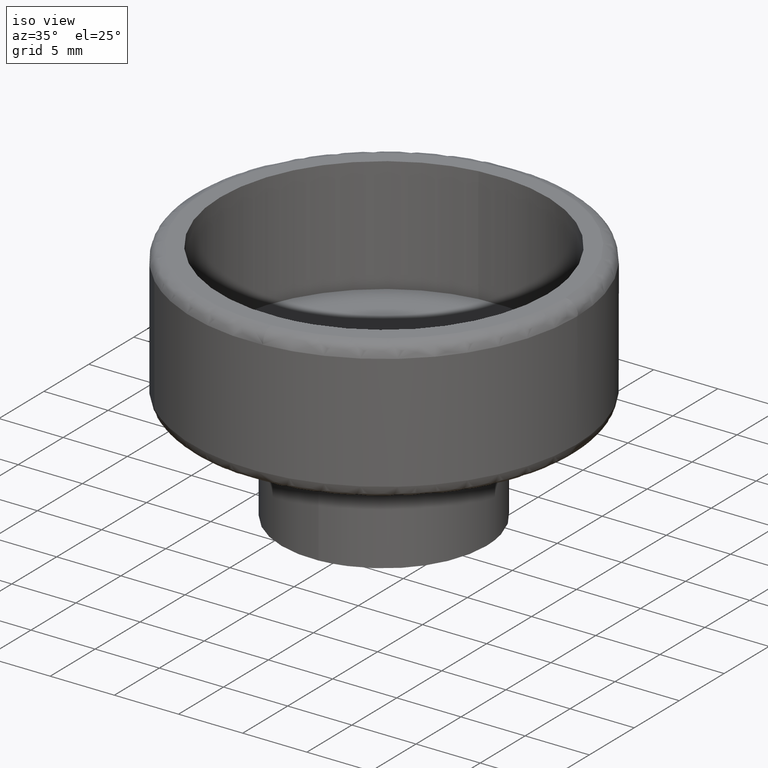
[diagram: clean part render]
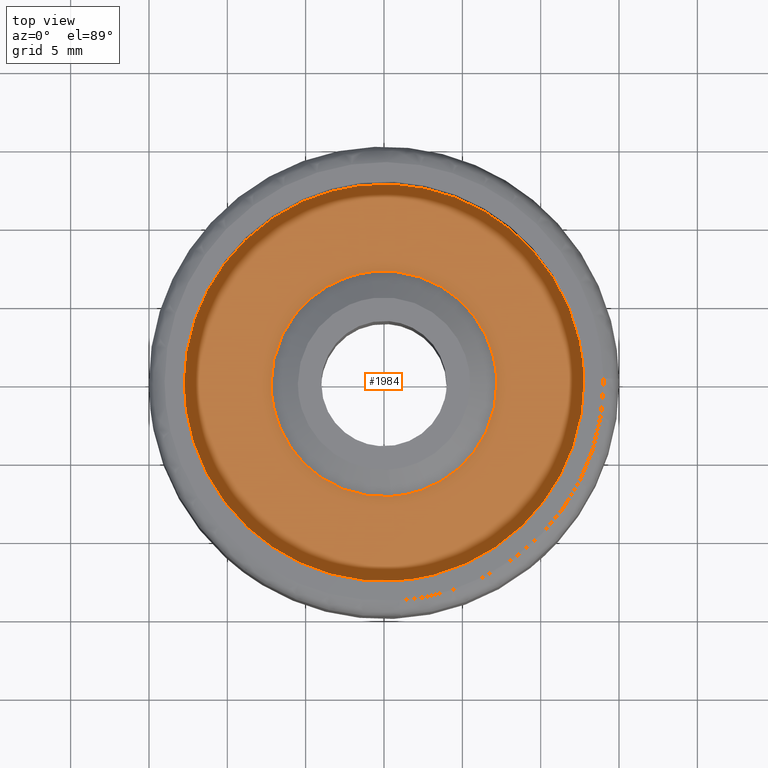
[diagram: tour spotlight — one face highlighted and labeled with its STEP entity id]
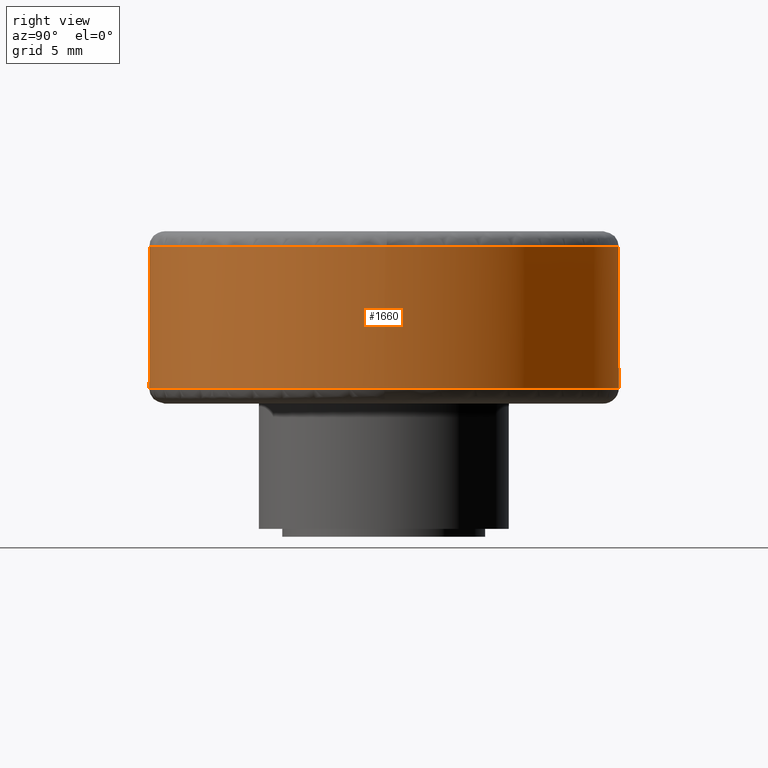
[diagram: tour spotlight — one face highlighted and labeled with its STEP entity id]
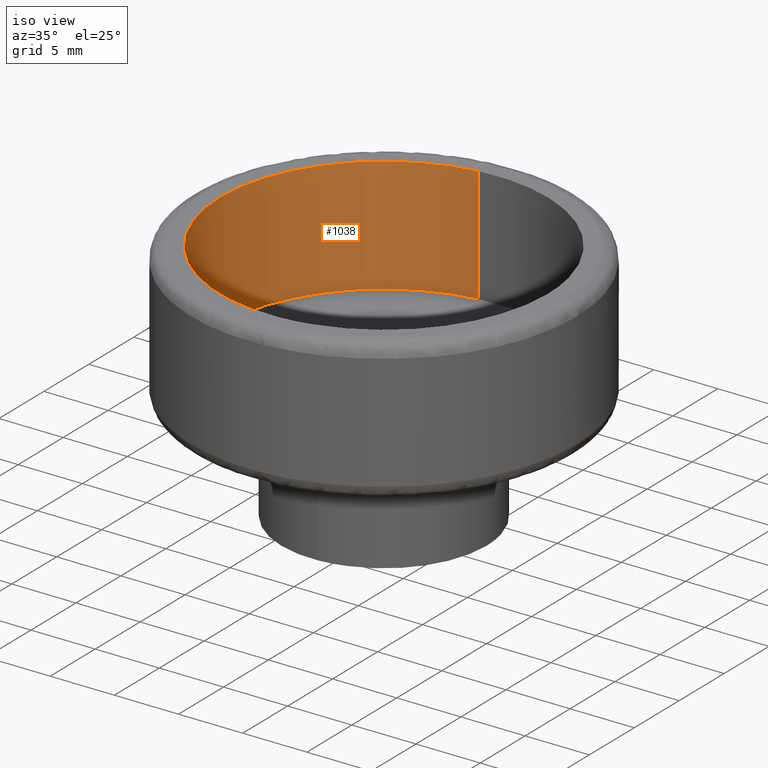
[diagram: tour spotlight — one face highlighted and labeled with its STEP entity id]
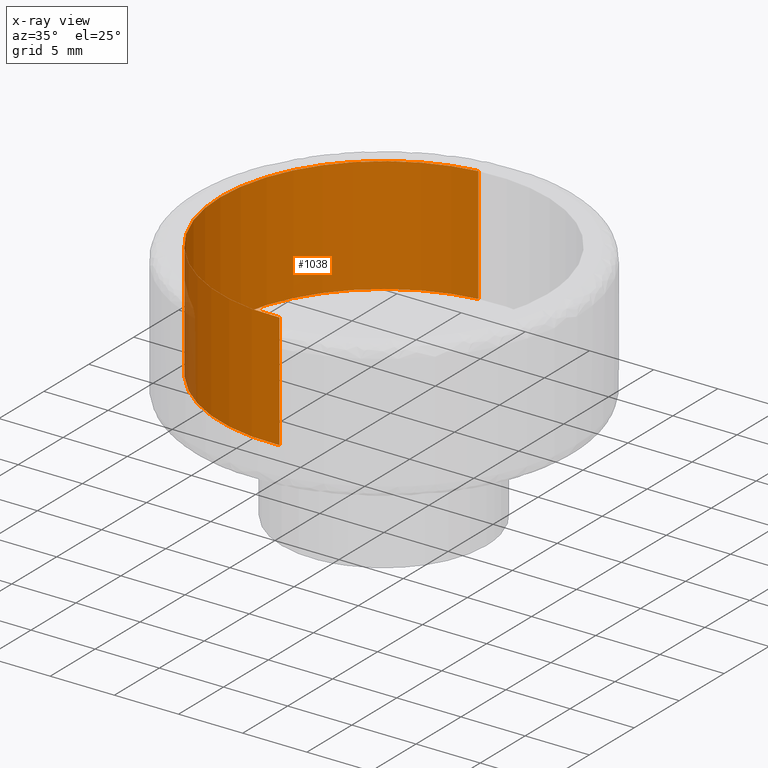
[diagram: x-ray of the same camera — body ghosted, this tour face saturated]
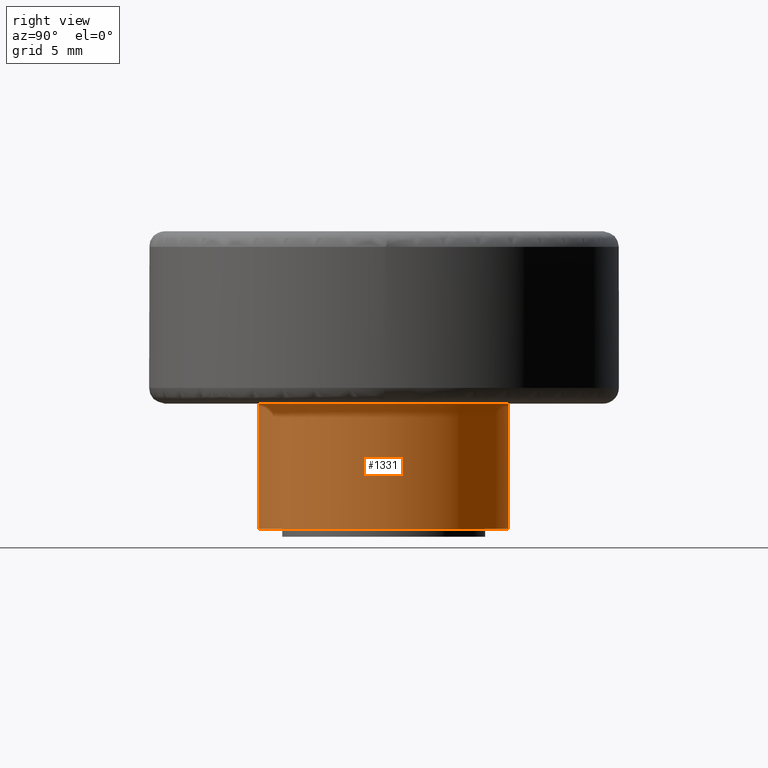
[diagram: tour spotlight — one face highlighted and labeled with its STEP entity id]
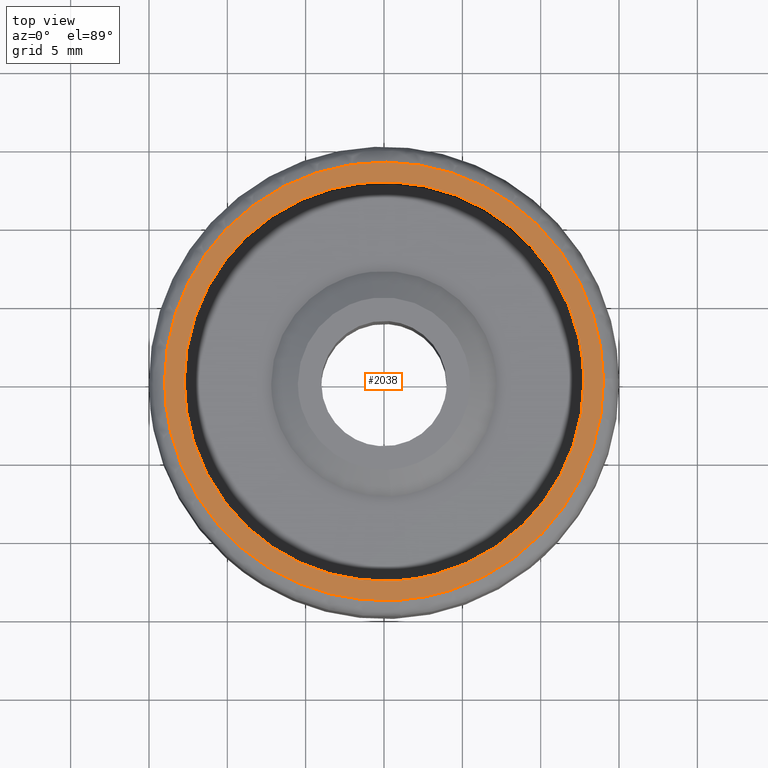
[diagram: tour spotlight — one face highlighted and labeled with its STEP entity id]
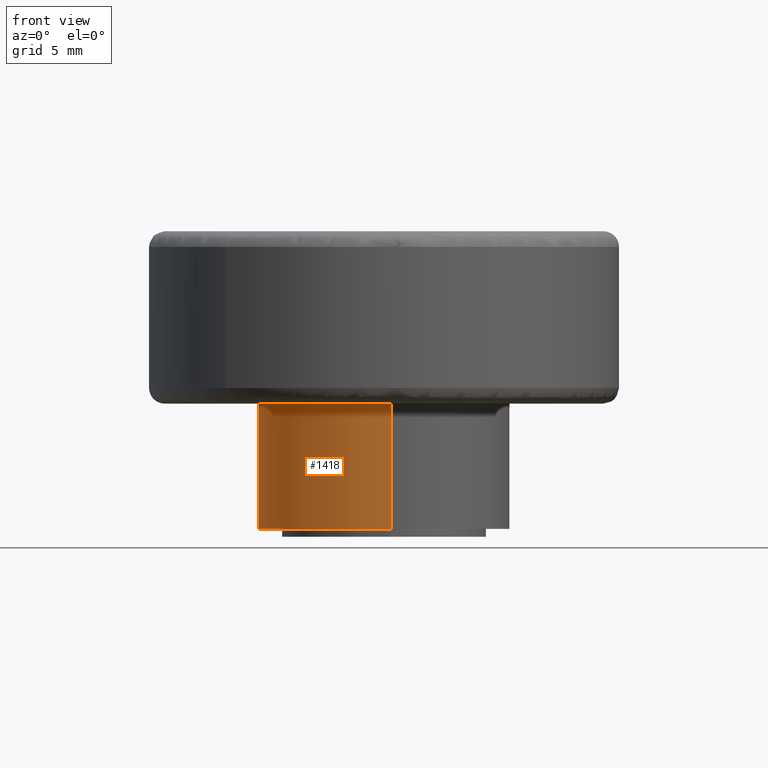
[diagram: tour spotlight — one face highlighted and labeled with its STEP entity id]
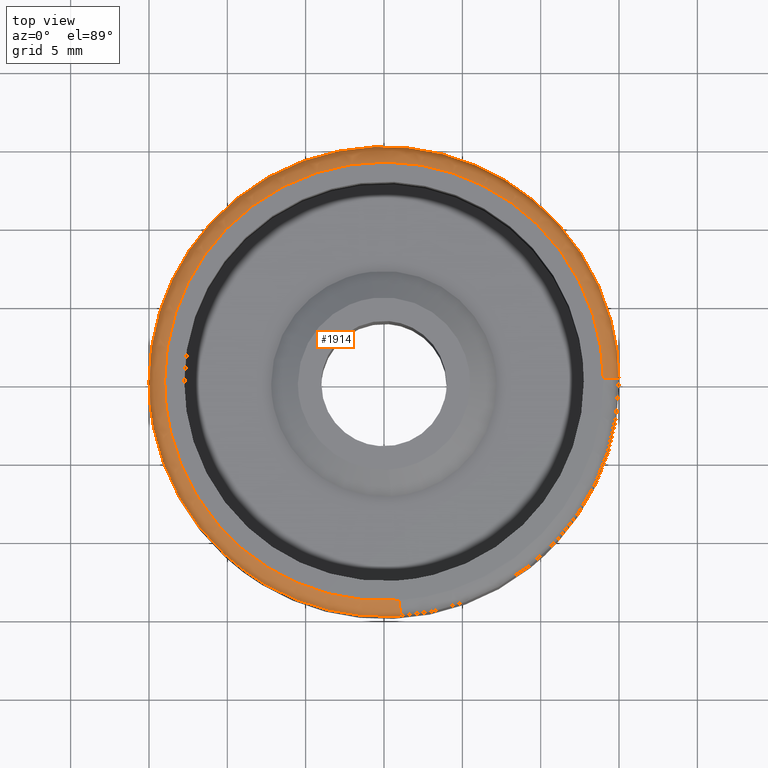
[diagram: tour spotlight — one face highlighted and labeled with its STEP entity id]
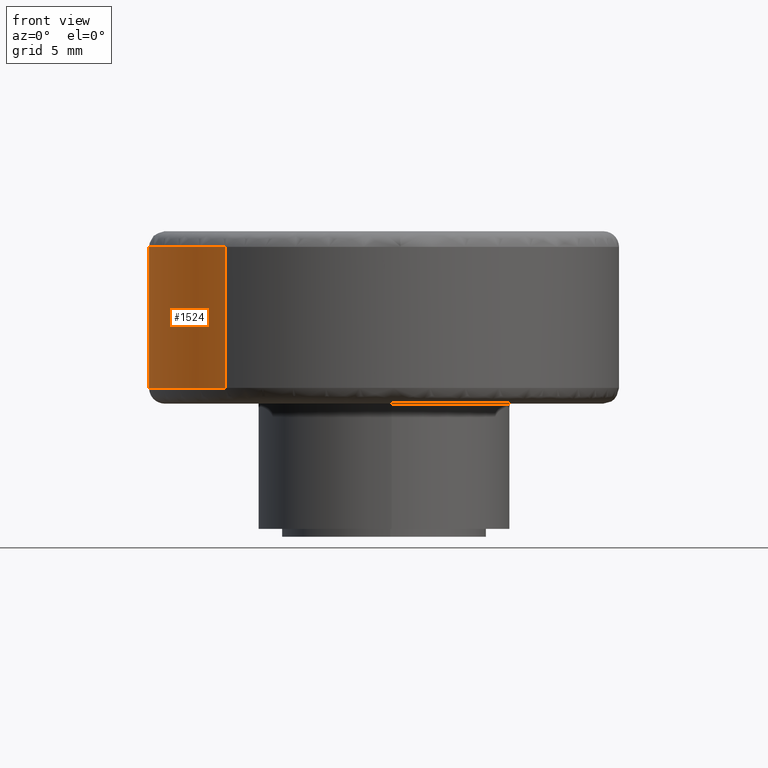
[diagram: tour spotlight — one face highlighted and labeled with its STEP entity id]
A machine part: a face-by-face anatomy tour. The part has 28 B-rep faces; the first image is the clean iso view, then the 8 largest visible faces are spotlighted one at a time (largest first), each with its STEP entity span.

Face 1 — top view, entity #1984. In plain terms, the highlighted face is a freeform B-spline surface patch.
Definition (entity closure, byte-faithful):
#689=CARTESIAN_POINT('',(-0.849846489608825,7.149668589820059,10.499999999993459));
#690=VERTEX_POINT('',#689);
#691=CARTESIAN_POINT('',(7.200000000000000,0.0,10.500000000000000));
#692=VERTEX_POINT('',#691);
#693=CARTESIAN_POINT('',(-0.849846489608825,7.149668589820060,10.499999999993461));
#694=CARTESIAN_POINT('',(-0.426413661573438,7.200000000000000,10.500000000000000));
#695=CARTESIAN_POINT('',(0.0,7.200000000000000,10.500000000000000));
#696=CARTESIAN_POINT('',(7.200000000000000,7.200000000000000,10.500000000000000));
#697=CARTESIAN_POINT('',(7.200000000000000,0.0,10.500000000000000));
#705=(BOUNDED_CURVE()B_SPLINE_CURVE(2,(#693,#694,#695,#696,#697),.UNSPECIFIED.,.F.,.U.)B_SPLINE_CURVE_WITH_KNOTS((3,2,3),(0.229562473511916,0.250000000000000,0.500000000000000),.UNSPECIFIED.)CURVE()GEOMETRIC_REPRESENTATION_ITEM()RATIONAL_B_SPLINE_CURVE((0.956026754180579,0.976055948329280,1.0,0.707106781186547,1.0))REPRESENTATION_ITEM(''));
#706=EDGE_CURVE('',#690,#692,#705,.T.);
#747=CARTESIAN_POINT('',(0.439549484679779,-7.186570548639866,10.499999999997540));
#748=VERTEX_POINT('',#747);
#754=CARTESIAN_POINT('',(7.200000000000000,0.0,10.500000000000000));
#755=CARTESIAN_POINT('',(7.200000000000000,-6.773083681667077,10.500000000000000));
#756=CARTESIAN_POINT('',(0.439549484679779,-7.186570548639866,10.499999999997540));
#764=(BOUNDED_CURVE()B_SPLINE_CURVE(2,(#754,#755,#756),.UNSPECIFIED.,.F.,.U.)B_SPLINE_CURVE_WITH_KNOTS((3,3),(0.500000000000000,0.739332962240597),.UNSPECIFIED.)CURVE()GEOMETRIC_REPRESENTATION_ITEM()RATIONAL_B_SPLINE_CURVE((1.0,0.719603993284772,0.976072041670263))REPRESENTATION_ITEM(''));
#765=EDGE_CURVE('',#692,#748,#764,.T.);
#788=CARTESIAN_POINT('',(-7.200000000000000,0.0,10.500000000000000));
#789=VERTEX_POINT('',#788);
#790=CARTESIAN_POINT('',(-7.200000000000000,0.0,10.500000000000000));
#791=CARTESIAN_POINT('',(-7.199999999999999,6.394856586707796,10.500000000000000));
#792=CARTESIAN_POINT('',(-0.849846489608825,7.149668589820059,10.499999999993465));
#800=(BOUNDED_CURVE()B_SPLINE_CURVE(2,(#790,#791,#792),.UNSPECIFIED.,.F.,.U.)B_SPLINE_CURVE_WITH_KNOTS((3,3),(0.0,0.229562473511916),.UNSPECIFIED.)CURVE()GEOMETRIC_REPRESENTATION_ITEM()RATIONAL_B_SPLINE_CURVE((1.0,0.731050832857268,0.956026754180579))REPRESENTATION_ITEM(''));
#801=EDGE_CURVE('',#789,#690,#800,.T.);
#803=CARTESIAN_POINT('',(0.439549484679779,-7.186570548639866,10.499999999997549));
#804=CARTESIAN_POINT('',(0.219979895778473,-7.200000000000000,10.499999999999996));
#805=CARTESIAN_POINT('',(0.0,-7.200000000000000,10.500000000000000));
#806=CARTESIAN_POINT('',(-7.200000000000000,-7.200000000000000,10.500000000000000));
#807=CARTESIAN_POINT('',(-7.200000000000000,0.0,10.500000000000000));
#815=(BOUNDED_CURVE()B_SPLINE_CURVE(2,(#803,#804,#805,#806,#807),.UNSPECIFIED.,.F.,.U.)B_SPLINE_CURVE_WITH_KNOTS((3,2,3),(0.739332962240597,0.750000000000000,1.0),.UNSPECIFIED.)CURVE()GEOMETRIC_REPRESENTATION_ITEM()RATIONAL_B_SPLINE_CURVE((0.976072041670263,0.987502787901775,1.0,0.707106781186547,1.0))REPRESENTATION_ITEM(''));
#816=EDGE_CURVE('',#748,#789,#815,.T.);
#875=CARTESIAN_POINT('',(-1.504928556916255,12.660872404321671,10.500000000000041));
#876=VERTEX_POINT('',#875);
#877=CARTESIAN_POINT('',(12.750000000000000,0.0,10.500000000000000));
#878=VERTEX_POINT('',#877);
#879=CARTESIAN_POINT('',(-1.504928556916255,12.660872404321671,10.500000000000039));
#880=CARTESIAN_POINT('',(-0.755103516139841,12.749999999999998,10.500000000000004));
#881=CARTESIAN_POINT('',(0.0,12.750000000000000,10.500000000000000));
#882=CARTESIAN_POINT('',(12.749999999999998,12.749999999999998,10.500000000000002));
#883=CARTESIAN_POINT('',(12.750000000000000,0.0,10.500000000000000));
#891=(BOUNDED_CURVE()B_SPLINE_CURVE(2,(#879,#880,#881,#882,#883),.UNSPECIFIED.,.F.,.U.)B_SPLINE_CURVE_WITH_KNOTS((3,2,3),(0.229562579435181,0.250000000000000,0.500000000000000),.UNSPECIFIED.)CURVE()GEOMETRIC_REPRESENTATION_ITEM()RATIONAL_B_SPLINE_CURVE((0.956026961794617,0.976056072426104,1.0,0.707106781186548,1.0))REPRESENTATION_ITEM(''));
#892=EDGE_CURVE('',#876,#878,#891,.T.);
#894=CARTESIAN_POINT('',(0.778355960860145,-12.726219469977170,10.500000000000000));
#895=VERTEX_POINT('',#894);
#896=CARTESIAN_POINT('',(12.750000000000000,0.0,10.500000000000000));
#897=CARTESIAN_POINT('',(12.750000000000000,-11.994014550750411,10.499999999999998));
#898=CARTESIAN_POINT('',(0.778355960860145,-12.726219469977163,10.499999999999998));
#906=(BOUNDED_CURVE()B_SPLINE_CURVE(2,(#896,#897,#898),.UNSPECIFIED.,.F.,.U.)B_SPLINE_CURVE_WITH_KNOTS((3,3),(0.500000000000000,0.739333137391861),.UNSPECIFIED.)CURVE()GEOMETRIC_REPRESENTATION_ITEM()RATIONAL_B_SPLINE_CURVE((1.0,0.719603788082303,0.976072417053050))REPRESENTATION_ITEM(''));
#907=EDGE_CURVE('',#878,#895,#906,.T.);
#974=CARTESIAN_POINT('',(-12.750000000000000,0.0,10.500000000000000));
#975=VERTEX_POINT('',#974);
#976=CARTESIAN_POINT('',(-12.750000000000000,0.0,10.500000000000000));
#977=CARTESIAN_POINT('',(-12.749999999999998,11.324232353083833,10.500000000000000));
#978=CARTESIAN_POINT('',(-1.504928556916255,12.660872404321671,10.500000000000039));
#986=(BOUNDED_CURVE()B_SPLINE_CURVE(2,(#976,#977,#978),.UNSPECIFIED.,.F.,.U.)B_SPLINE_CURVE_WITH_KNOTS((3,3),(0.0,0.229562579435181),.UNSPECIFIED.)CURVE()GEOMETRIC_REPRESENTATION_ITEM()RATIONAL_B_SPLINE_CURVE((1.0,0.731050708760444,0.956026961794617))REPRESENTATION_ITEM(''));
#987=EDGE_CURVE('',#975,#876,#986,.T.);
#1021=CARTESIAN_POINT('',(0.778355960860145,-12.726219469977163,10.499999999999998));
#1022=CARTESIAN_POINT('',(0.389541254842171,-12.749999999999998,10.499999999999998));
#1023=CARTESIAN_POINT('',(0.0,-12.750000000000000,10.500000000000000));
#1024=CARTESIAN_POINT('',(-12.749999999999998,-12.749999999999998,10.500000000000002));
#1025=CARTESIAN_POINT('',(-12.750000000000000,0.0,10.500000000000000));
#1033=(BOUNDED_CURVE()B_SPLINE_CURVE(2,(#1021,#1022,#1023,#1024,#1025),.UNSPECIFIED.,.F.,.U.)B_SPLINE_CURVE_WITH_KNOTS((3,2,3),(0.739333137391861,0.750000000000000,1.0),.UNSPECIFIED.)CURVE()GEOMETRIC_REPRESENTATION_ITEM()RATIONAL_B_SPLINE_CURVE((0.976072417053050,0.987502993104245,1.0,0.707106781186548,1.0))REPRESENTATION_ITEM(''));
#1034=EDGE_CURVE('',#895,#975,#1033,.T.);
#1967=CARTESIAN_POINT('',(-14.023724950576050,-14.023415345036151,10.500000000000000));
#1968=CARTESIAN_POINT('',(14.023725634539350,-14.023415345036151,10.500000000000000));
#1969=CARTESIAN_POINT('',(-14.023724950576050,14.023493088864450,10.500000000000000));
#1970=CARTESIAN_POINT('',(14.023725634539350,14.023493088864450,10.500000000000000));
#1971=B_SPLINE_SURFACE_WITH_KNOTS('',1,1,((#1967,#1969),(#1968,#1970)),.UNSPECIFIED.,.F.,.F.,.U.,(2,2),(2,2),(0.0,28.047450585115399),(0.0,28.046908433900612),.UNSPECIFIED.);
#1972=ORIENTED_EDGE('',*,*,#1034,.F.);
#1973=ORIENTED_EDGE('',*,*,#907,.F.);
#1974=ORIENTED_EDGE('',*,*,#892,.F.);
#1975=ORIENTED_EDGE('',*,*,#987,.F.);
#1976=EDGE_LOOP('',(#1972,#1973,#1974,#1975));
#1977=FACE_OUTER_BOUND('',#1976,.T.);
#1978=ORIENTED_EDGE('',*,*,#765,.T.);
#1979=ORIENTED_EDGE('',*,*,#816,.T.);
#1980=ORIENTED_EDGE('',*,*,#801,.T.);
#1981=ORIENTED_EDGE('',*,*,#706,.T.);
#1982=EDGE_LOOP('',(#1978,#1979,#1980,#1981));
#1983=FACE_BOUND('',#1982,.T.);
#1984=ADVANCED_FACE('',(#1977,#1983),#1971,.T.);

Face 2 — right view, entity #1660. In plain terms, the highlighted face is a freeform B-spline surface patch.
Definition (entity closure, byte-faithful):
#1433=CARTESIAN_POINT('',(-10.133852641196940,-11.059160485611191,9.499999999958185));
#1434=VERTEX_POINT('',#1433);
#1450=CARTESIAN_POINT('',(-10.133852520109810,-11.059160596565880,18.499999162921480));
#1451=VERTEX_POINT('',#1450);
#1452=CARTESIAN_POINT('',(-10.133852520109810,-11.059160596565880,18.499999162921480));
#1453=CARTESIAN_POINT('',(-10.133852641196940,-11.059160485611191,9.499999999958185));
#1454=QUASI_UNIFORM_CURVE('',1,(#1452,#1453),.UNSPECIFIED.,.F.,.U.);
#1455=EDGE_CURVE('',#1451,#1434,#1454,.T.);
#1472=CARTESIAN_POINT('',(-11.059160596566780,10.133852520110640,18.499999779909409));
#1473=VERTEX_POINT('',#1472);
#1487=CARTESIAN_POINT('',(-11.059160621372991,10.133852493038930,9.499999999958245));
#1488=VERTEX_POINT('',#1487);
#1489=CARTESIAN_POINT('',(-11.059160596566780,10.133852520110640,18.499999779909409));
#1490=CARTESIAN_POINT('',(-11.059160621372991,10.133852493038930,9.499999999958245));
#1491=QUASI_UNIFORM_CURVE('',1,(#1489,#1490),.UNSPECIFIED.,.F.,.U.);
#1492=EDGE_CURVE('',#1473,#1488,#1491,.T.);
#1525=CARTESIAN_POINT('',(-11.059160052151860,10.133853114234901,18.725000000003881));
#1526=CARTESIAN_POINT('',(-0.925306937916952,21.193013166386756,18.725000000003885));
#1527=CARTESIAN_POINT('',(10.133853114234901,11.059160052151860,18.725000000003881));
#1528=CARTESIAN_POINT('',(21.193013166386756,0.925306937916952,18.725000000003885));
#1529=CARTESIAN_POINT('',(11.059160052151860,-10.133853114234901,18.725000000003881));
#1530=CARTESIAN_POINT('',(0.925306937916952,-21.193013166386756,18.725000000003885));
#1531=CARTESIAN_POINT('',(-10.133853114234901,-11.059160052151860,18.725000000003881));
#1532=CARTESIAN_POINT('',(-11.059160052151860,10.133853114234901,9.269374999840888));
#1533=CARTESIAN_POINT('',(-0.925306937916952,21.193013166386756,9.269374999840888));
#1534=CARTESIAN_POINT('',(10.133853114234901,11.059160052151860,9.269374999840888));
#1535=CARTESIAN_POINT('',(21.193013166386756,0.925306937916952,9.269374999840888));
#1536=CARTESIAN_POINT('',(11.059160052151860,-10.133853114234901,9.269374999840888));
#1537=CARTESIAN_POINT('',(0.925306937916952,-21.193013166386756,9.269374999840888));
#1538=CARTESIAN_POINT('',(-10.133853114234901,-11.059160052151860,9.269374999840888));
#1546=(BOUNDED_SURFACE()B_SPLINE_SURFACE(2,1,((#1525,#1532),(#1526,#1533),(#1527,#1534),(#1528,#1535),(#1529,#1536),(#1530,#1537),(#1531,#1538)),.UNSPECIFIED.,.F.,.F.,.U.)B_SPLINE_SURFACE_WITH_KNOTS((3,2,2,3),(2,2),(0.0,24.852813742385688,49.705627484771377,74.558441227157076),(0.0,9.455625000162989),.UNSPECIFIED.)GEOMETRIC_REPRESENTATION_ITEM()RATIONAL_B_SPLINE_SURFACE(((1.0,1.0),(0.707106781186548,0.707106781186548),(1.0,1.0),(0.707106781186548,0.707106781186548),(1.0,1.0),(0.707106781186548,0.707106781186548),(1.0,1.0)))REPRESENTATION_ITEM('')SURFACE());
#1547=CARTESIAN_POINT('',(15.0,0.0,9.500000000000000));
#1548=VERTEX_POINT('',#1547);
#1549=CARTESIAN_POINT('',(15.0,0.0,9.500000000000000));
#1550=CARTESIAN_POINT('',(14.999999999999996,-14.999999999999996,9.500000000000000));
#1551=CARTESIAN_POINT('',(0.0,-15.0,9.500000000000000));
#1552=CARTESIAN_POINT('',(-5.833180239166579,-15.000000000000004,9.499999999999998));
#1553=CARTESIAN_POINT('',(-10.133852641196942,-11.059160485611187,9.499999999958185));
#1561=(BOUNDED_CURVE()B_SPLINE_CURVE(2,(#1549,#1550,#1551,#1552,#1553),.UNSPECIFIED.,.F.,.U.)B_SPLINE_CURVE_WITH_KNOTS((3,2,3),(0.500000000000000,0.750000000000000,0.868415196169909),.UNSPECIFIED.)CURVE()GEOMETRIC_REPRESENTATION_ITEM()RATIONAL_B_SPLINE_CURVE((1.0,0.707106781186547,1.0,0.861267968149476,0.853959782431991))REPRESENTATION_ITEM(''));
#1562=EDGE_CURVE('',#1548,#1434,#1561,.T.);
#1563=ORIENTED_EDGE('',*,*,#1562,.F.);
#1564=CARTESIAN_POINT('',(-0.376951431650354,14.995262839249490,9.499999999845045));
#1565=VERTEX_POINT('',#1564);
#1566=CARTESIAN_POINT('',(-0.376951431650354,14.995262839249484,9.499999999845045));
#1567=CARTESIAN_POINT('',(-0.188505481850986,15.000000000000004,9.500000000000000));
#1568=CARTESIAN_POINT('',(0.0,15.0,9.500000000000000));
#1569=CARTESIAN_POINT('',(14.999999999999996,14.999999999999996,9.500000000000000));
#1570=CARTESIAN_POINT('',(15.0,0.0,9.500000000000000));
#1578=(BOUNDED_CURVE()B_SPLINE_CURVE(2,(#1566,#1567,#1568,#1569,#1570),.UNSPECIFIED.,.F.,.U.)B_SPLINE_CURVE_WITH_KNOTS((3,2,3),(0.245579891769801,0.250000000000000,0.500000000000000),.UNSPECIFIED.)CURVE()GEOMETRIC_REPRESENTATION_ITEM()RATIONAL_B_SPLINE_CURVE((0.989826157681561,0.994821521091812,1.0,0.707106781186547,1.0))REPRESENTATION_ITEM(''));
#1579=EDGE_CURVE('',#1565,#1548,#1578,.T.);
#1580=ORIENTED_EDGE('',*,*,#1579,.F.);
#1581=CARTESIAN_POINT('',(-11.059160621372992,10.133852493038928,9.499999999958243));
#1582=CARTESIAN_POINT('',(-6.751332100486662,14.835023439329483,9.499999999912594));
#1583=CARTESIAN_POINT('',(-0.376951431650354,14.995262839249488,9.499999999845045));
#1591=(BOUNDED_CURVE()B_SPLINE_CURVE(2,(#1581,#1582,#1583),.UNSPECIFIED.,.F.,.U.)B_SPLINE_CURVE_WITH_KNOTS((3,3),(0.118415192125124,0.245579891769801),.UNSPECIFIED.)CURVE()GEOMETRIC_REPRESENTATION_ITEM()RATIONAL_B_SPLINE_CURVE((0.853959782931252,0.846111602607868,0.989826157681561))REPRESENTATION_ITEM(''));
#1592=EDGE_CURVE('',#1488,#1565,#1591,.T.);
#1593=ORIENTED_EDGE('',*,*,#1592,.F.);
#1594=ORIENTED_EDGE('',*,*,#1492,.F.);
#1595=CARTESIAN_POINT('',(14.998815787281290,0.188480712599963,18.499998351190680));
#1596=VERTEX_POINT('',#1595);
#1597=CARTESIAN_POINT('',(-11.059160596566775,10.133852520110644,18.499999779909409));
#1598=CARTESIAN_POINT('',(-6.600158925231896,14.999999999999982,18.499999533162445));
#1599=CARTESIAN_POINT('',(-3.008392E-012,14.999999999999959,18.499999170415659));
#1600=CARTESIAN_POINT('',(14.812688712346203,14.999999999999920,18.499998356305696));
#1601=CARTESIAN_POINT('',(14.998815787281290,0.188480712599963,18.499998351190687));
#1609=(BOUNDED_CURVE()B_SPLINE_CURVE(2,(#1597,#1598,#1599,#1600,#1601),.UNSPECIFIED.,.F.,.U.)B_SPLINE_CURVE_WITH_KNOTS((3,2,3),(0.118415192864195,0.250000000000000,0.497784411834908),.UNSPECIFIED.)CURVE()GEOMETRIC_REPRESENTATION_ITEM()RATIONAL_B_SPLINE_CURVE((0.853959782840026,0.845838809164187,1.0,0.709702504183502,0.994854562431305))REPRESENTATION_ITEM(''));
#1610=EDGE_CURVE('',#1473,#1596,#1609,.T.);
#1611=ORIENTED_EDGE('',*,*,#1610,.T.);
#1612=CARTESIAN_POINT('',(15.0,0.0,18.500000000000000));
#1613=VERTEX_POINT('',#1612);
#1614=CARTESIAN_POINT('',(14.998815787281290,0.188480712599963,18.499998351190687));
#1615=CARTESIAN_POINT('',(14.999999999997007,0.094244076467763,18.499999175595342));
#1616=CARTESIAN_POINT('',(15.0,0.0,18.500000000000000));
#1624=(BOUNDED_CURVE()B_SPLINE_CURVE(2,(#1614,#1615,#1616),.UNSPECIFIED.,.F.,.U.)B_SPLINE_CURVE_WITH_KNOTS((3,3),(0.497784411834908,0.500000000000000),.UNSPECIFIED.)CURVE()GEOMETRIC_REPRESENTATION_ITEM()RATIONAL_B_SPLINE_CURVE((0.994854562431305,0.997404277003045,1.0))REPRESENTATION_ITEM(''));
#1625=EDGE_CURVE('',#1596,#1613,#1624,.T.);
#1626=ORIENTED_EDGE('',*,*,#1625,.T.);
#1627=CARTESIAN_POINT('',(1.045989940321698,-14.963485725077071,18.499998345610489));
#1628=VERTEX_POINT('',#1627);
#1629=CARTESIAN_POINT('',(15.0,0.0,18.500000000000000));
#1630=CARTESIAN_POINT('',(14.999999999999815,-13.988060986637265,18.499999172805243));
#1631=CARTESIAN_POINT('',(1.045989940321698,-14.963485725077065,18.499998345610496));
#1639=(BOUNDED_CURVE()B_SPLINE_CURVE(2,(#1629,#1630,#1631),.UNSPECIFIED.,.F.,.U.)B_SPLINE_CURVE_WITH_KNOTS((3,3),(0.500000000000000,0.737833788060594),.UNSPECIFIED.)CURVE()GEOMETRIC_REPRESENTATION_ITEM()RATIONAL_B_SPLINE_CURVE((1.0,0.721360385089344,0.972880091122261))REPRESENTATION_ITEM(''));
#1640=EDGE_CURVE('',#1613,#1628,#1639,.T.);
#1641=ORIENTED_EDGE('',*,*,#1640,.T.);
#1642=CARTESIAN_POINT('',(1.045989940321698,-14.963485725077065,18.499998345610496));
#1643=CARTESIAN_POINT('',(0.523632305292375,-14.999999999994747,18.499998372538812));
#1644=CARTESIAN_POINT('',(-3.604520E-013,-14.999999999994840,18.499998401415201));
#1645=CARTESIAN_POINT('',(-5.833180050094442,-14.999999999995884,18.499998723093597));
#1646=CARTESIAN_POINT('',(-10.133852520109810,-11.059160596565876,18.499999162921480));
#1654=(BOUNDED_CURVE()B_SPLINE_CURVE(2,(#1642,#1643,#1644,#1645,#1646),.UNSPECIFIED.,.F.,.U.)B_SPLINE_CURVE_WITH_KNOTS((3,2,3),(0.737833788060594,0.750000000000000,0.868415192864170),.UNSPECIFIED.)CURVE()GEOMETRIC_REPRESENTATION_ITEM()RATIONAL_B_SPLINE_CURVE((0.972880091122261,0.985746396097203,1.0,0.861267972022390,0.853959782840029))REPRESENTATION_ITEM(''));
#1655=EDGE_CURVE('',#1628,#1451,#1654,.T.);
#1656=ORIENTED_EDGE('',*,*,#1655,.T.);
#1657=ORIENTED_EDGE('',*,*,#1455,.T.);
#1658=EDGE_LOOP('',(#1563,#1580,#1593,#1594,#1611,#1626,#1641,#1656,#1657));
#1659=FACE_OUTER_BOUND('',#1658,.T.);
#1660=ADVANCED_FACE('',(#1659),#1546,.T.);

Face 3 — iso view, entity #1038. An x-ray twin of the same camera follows (body ghosted, this face saturated) — the face is partly hidden behind the body. In plain terms, the highlighted face is a freeform B-spline surface patch.
Definition (entity closure, byte-faithful):
#875=CARTESIAN_POINT('',(-1.504928556916255,12.660872404321671,10.500000000000041));
#876=VERTEX_POINT('',#875);
#894=CARTESIAN_POINT('',(0.778355960860145,-12.726219469977170,10.500000000000000));
#895=VERTEX_POINT('',#894);
#909=CARTESIAN_POINT('',(0.778356120248808,-12.726219460228860,19.500000000000000));
#910=VERTEX_POINT('',#909);
#911=CARTESIAN_POINT('',(0.778356120248808,-12.726219460228860,19.500000000000000));
#912=CARTESIAN_POINT('',(0.778355960860145,-12.726219469977170,10.500000000000000));
#913=QUASI_UNIFORM_CURVE('',1,(#911,#912),.UNSPECIFIED.,.F.,.U.);
#914=EDGE_CURVE('',#910,#895,#913,.T.);
#931=CARTESIAN_POINT('',(-1.504928654753792,12.660872392692321,19.500000000000000));
#932=VERTEX_POINT('',#931);
#948=CARTESIAN_POINT('',(-1.504928654753792,12.660872392692321,19.500000000000000));
#949=CARTESIAN_POINT('',(-1.504928556916255,12.660872404321671,10.500000000000041));
#950=QUASI_UNIFORM_CURVE('',1,(#948,#949),.UNSPECIFIED.,.F.,.U.);
#951=EDGE_CURVE('',#932,#876,#950,.T.);
#956=CARTESIAN_POINT('',(0.778368879069427,-12.726218679878800,19.725000000000009));
#957=CARTESIAN_POINT('',(-11.947849800809374,-13.504587558948227,19.725000000000012));
#958=CARTESIAN_POINT('',(-12.726218679878800,-0.778368879069427,19.725000000000009));
#959=CARTESIAN_POINT('',(-13.461274008339725,11.239679508203638,19.725000000000005));
#960=CARTESIAN_POINT('',(-1.504936491873671,12.660871461136745,19.725000000000005));
#961=CARTESIAN_POINT('',(0.778368879069427,-12.726218679878800,10.269375000000000));
#962=CARTESIAN_POINT('',(-11.947849800809374,-13.504587558948227,10.269374999999997));
#963=CARTESIAN_POINT('',(-12.726218679878800,-0.778368879069427,10.269375000000000));
#964=CARTESIAN_POINT('',(-13.461274008339725,11.239679508203638,10.269374999999997));
#965=CARTESIAN_POINT('',(-1.504936491873671,12.660871461136745,10.269374999999995));
#973=(BOUNDED_SURFACE()B_SPLINE_SURFACE(2,1,((#956,#961),(#957,#962),(#958,#963),(#959,#964),(#960,#965)),.UNSPECIFIED.,.F.,.F.,.U.)B_SPLINE_SURFACE_WITH_KNOTS((3,2,3),(2,2),(0.0,21.124891681027851,41.404787694814580),(0.0,9.455625000000012),.UNSPECIFIED.)GEOMETRIC_REPRESENTATION_ITEM()RATIONAL_B_SPLINE_SURFACE(((1.0,1.0),(0.707106781186548,0.707106781186548),(1.0,1.0),(0.718822509939086,0.718822509939086),(0.977505800795127,0.977505800795127)))REPRESENTATION_ITEM('')SURFACE());
#974=CARTESIAN_POINT('',(-12.750000000000000,0.0,10.500000000000000));
#975=VERTEX_POINT('',#974);
#976=CARTESIAN_POINT('',(-12.750000000000000,0.0,10.500000000000000));
#977=CARTESIAN_POINT('',(-12.749999999999998,11.324232353083833,10.500000000000000));
#978=CARTESIAN_POINT('',(-1.504928556916255,12.660872404321671,10.500000000000039));
#986=(BOUNDED_CURVE()B_SPLINE_CURVE(2,(#976,#977,#978),.UNSPECIFIED.,.F.,.U.)B_SPLINE_CURVE_WITH_KNOTS((3,3),(0.0,0.229562579435181),.UNSPECIFIED.)CURVE()GEOMETRIC_REPRESENTATION_ITEM()RATIONAL_B_SPLINE_CURVE((1.0,0.731050708760444,0.956026961794617))REPRESENTATION_ITEM(''));
#987=EDGE_CURVE('',#975,#876,#986,.T.);
#988=ORIENTED_EDGE('',*,*,#987,.T.);
#989=ORIENTED_EDGE('',*,*,#951,.F.);
#990=CARTESIAN_POINT('',(-12.750000000000000,0.0,19.500000000000000));
#991=VERTEX_POINT('',#990);
#992=CARTESIAN_POINT('',(-12.750000000000000,0.0,19.500000000000000));
#993=CARTESIAN_POINT('',(-12.750000000000000,11.324232264959232,19.500000000000000));
#994=CARTESIAN_POINT('',(-1.504928654753792,12.660872392692326,19.500000000000004));
#1002=(BOUNDED_CURVE()B_SPLINE_CURVE(2,(#992,#993,#994),.UNSPECIFIED.,.F.,.U.)B_SPLINE_CURVE_WITH_KNOTS((3,3),(0.0,0.229562578129200),.UNSPECIFIED.)CURVE()GEOMETRIC_REPRESENTATION_ITEM()RATIONAL_B_SPLINE_CURVE((1.0,0.731050710290496,0.956026959234838))REPRESENTATION_ITEM(''));
#1003=EDGE_CURVE('',#991,#932,#1002,.T.);
#1004=ORIENTED_EDGE('',*,*,#1003,.F.);
#1005=CARTESIAN_POINT('',(0.778356120248808,-12.726219460228863,19.500000000000004));
#1006=CARTESIAN_POINT('',(0.389541334759945,-12.749999999999996,19.499999999999996));
#1007=CARTESIAN_POINT('',(0.0,-12.750000000000000,19.500000000000000));
#1008=CARTESIAN_POINT('',(-12.749999999999998,-12.749999999999998,19.500000000000004));
#1009=CARTESIAN_POINT('',(-12.750000000000000,0.0,19.500000000000000));
#1017=(BOUNDED_CURVE()B_SPLINE_CURVE(2,(#1005,#1006,#1007,#1008,#1009),.UNSPECIFIED.,.F.,.U.)B_SPLINE_CURVE_WITH_KNOTS((3,2,3),(0.739333135230810,0.750000000000000,1.0),.UNSPECIFIED.)CURVE()GEOMETRIC_REPRESENTATION_ITEM()RATIONAL_B_SPLINE_CURVE((0.976072412421499,0.987502990572416,1.0,0.707106781186548,1.0))REPRESENTATION_ITEM(''));
#1018=EDGE_CURVE('',#910,#991,#1017,.T.);
#1019=ORIENTED_EDGE('',*,*,#1018,.F.);
#1020=ORIENTED_EDGE('',*,*,#914,.T.);
#1021=CARTESIAN_POINT('',(0.778355960860145,-12.726219469977163,10.499999999999998));
#1022=CARTESIAN_POINT('',(0.389541254842171,-12.749999999999998,10.499999999999998));
#1023=CARTESIAN_POINT('',(0.0,-12.750000000000000,10.500000000000000));
#1024=CARTESIAN_POINT('',(-12.749999999999998,-12.749999999999998,10.500000000000002));
#1025=CARTESIAN_POINT('',(-12.750000000000000,0.0,10.500000000000000));
#1033=(BOUNDED_CURVE()B_SPLINE_CURVE(2,(#1021,#1022,#1023,#1024,#1025),.UNSPECIFIED.,.F.,.U.)B_SPLINE_CURVE_WITH_KNOTS((3,2,3),(0.739333137391861,0.750000000000000,1.0),.UNSPECIFIED.)CURVE()GEOMETRIC_REPRESENTATION_ITEM()RATIONAL_B_SPLINE_CURVE((0.976072417053050,0.987502993104245,1.0,0.707106781186548,1.0))REPRESENTATION_ITEM(''));
#1034=EDGE_CURVE('',#895,#975,#1033,.T.);
#1035=ORIENTED_EDGE('',*,*,#1034,.T.);
#1036=EDGE_LOOP('',(#988,#989,#1004,#1019,#1020,#1035));
#1037=FACE_OUTER_BOUND('',#1036,.T.);
#1038=ADVANCED_FACE('',(#1037),#973,.F.);

Face 4 — right view, entity #1331. In plain terms, the highlighted face is a freeform B-spline surface patch.
Definition (entity closure, byte-faithful):
#1225=CARTESIAN_POINT('',(-1.062154893712809,7.930064265214087,8.700000000000003));
#1226=CARTESIAN_POINT('',(-1.003048208713038,7.937089990689847,8.700000000000005));
#1227=CARTESIAN_POINT('',(-0.716917829103821,7.971100923588844,8.700000000000003));
#1228=CARTESIAN_POINT('',(-0.488388316278856,7.985078387374934,8.700000000000003));
#1229=CARTESIAN_POINT('',(7.496690071096078,8.473466703653790,8.700000000000003));
#1230=CARTESIAN_POINT('',(7.985078387374934,0.488388316278856,8.700000000000003));
#1231=CARTESIAN_POINT('',(8.473466703653790,-7.496690071096078,8.700000000000003));
#1232=CARTESIAN_POINT('',(0.430961235851257,-7.988590778081480,8.700000000000005));
#1233=CARTESIAN_POINT('',(0.373875282967299,-7.992082304533651,8.700000000000005));
#1234=CARTESIAN_POINT('',(-1.062154893712809,7.930064265214087,0.295000000000000));
#1235=CARTESIAN_POINT('',(-1.003048208713038,7.937089990689847,0.295000000000000));
#1236=CARTESIAN_POINT('',(-0.716917829103821,7.971100923588844,0.295000000000000));
#1237=CARTESIAN_POINT('',(-0.488388316278856,7.985078387374934,0.295000000000000));
#1238=CARTESIAN_POINT('',(7.496690071096078,8.473466703653790,0.295000000000000));
#1239=CARTESIAN_POINT('',(7.985078387374934,0.488388316278856,0.295000000000000));
#1240=CARTESIAN_POINT('',(8.473466703653790,-7.496690071096078,0.295000000000000));
#1241=CARTESIAN_POINT('',(0.430961235851257,-7.988590778081480,0.295000000000000));
#1242=CARTESIAN_POINT('',(0.373875282967299,-7.992082304533651,0.295000000000000));
#1250=(BOUNDED_SURFACE()B_SPLINE_SURFACE(2,1,((#1225,#1234),(#1226,#1235),(#1227,#1236),(#1228,#1237),(#1229,#1238),(#1230,#1239),(#1231,#1240),(#1232,#1241),(#1233,#1242)),.UNSPECIFIED.,.F.,.F.,.U.)B_SPLINE_SURFACE_WITH_KNOTS((3,1,2,2,1,3),(2,2),(0.0,0.135185528684377,0.665378888521939,13.920212884460980,27.175046880400011,27.310261145722318),(0.0,8.405000000000005),.UNSPECIFIED.)GEOMETRIC_REPRESENTATION_ITEM()RATIONAL_B_SPLINE_SURFACE(((0.972009341062194,0.972009341062194),(0.974757570928660,0.974757570928660),(0.988284271247462,0.988284271247462),(1.0,1.0),(0.707106781186548,0.707106781186548),(1.0,1.0),(0.707106781186548,0.707106781186548),(1.002987841372580,1.002987841372580),(1.005975682745160,1.005975682745160)))REPRESENTATION_ITEM('')SURFACE());
#1251=CARTESIAN_POINT('',(-0.944261778678434,7.944077648989753,0.500000000000018));
#1252=VERTEX_POINT('',#1251);
#1253=CARTESIAN_POINT('',(8.0,0.0,0.500000000000000));
#1254=VERTEX_POINT('',#1253);
#1255=CARTESIAN_POINT('',(-0.944261778678434,7.944077648989753,0.500000000000018));
#1256=CARTESIAN_POINT('',(-0.473786843976548,8.0,0.500000000000000));
#1257=CARTESIAN_POINT('',(0.0,8.0,0.500000000000000));
#1258=CARTESIAN_POINT('',(8.0,8.0,0.500000000000000));
#1259=CARTESIAN_POINT('',(8.0,0.0,0.500000000000000));
#1267=(BOUNDED_CURVE()B_SPLINE_CURVE(2,(#1255,#1256,#1257,#1258,#1259),.UNSPECIFIED.,.F.,.U.)B_SPLINE_CURVE_WITH_KNOTS((3,2,3),(0.229562730902245,0.250000000000000,0.500000000000000),.UNSPECIFIED.)CURVE()GEOMETRIC_REPRESENTATION_ITEM()RATIONAL_B_SPLINE_CURVE((0.956027258676778,0.976056249880808,1.0,0.707106781186548,1.0))REPRESENTATION_ITEM(''));
#1268=EDGE_CURVE('',#1252,#1254,#1267,.T.);
#1269=ORIENTED_EDGE('',*,*,#1268,.F.);
#1270=CARTESIAN_POINT('',(-0.944261927935937,7.944077631248695,8.500000000000000));
#1271=VERTEX_POINT('',#1270);
#1272=CARTESIAN_POINT('',(-0.944261927935937,7.944077631248695,8.500000000000000));
#1273=CARTESIAN_POINT('',(-0.944261778678434,7.944077648989753,0.500000000000018));
#1274=QUASI_UNIFORM_CURVE('',1,(#1272,#1273),.UNSPECIFIED.,.F.,.U.);
#1275=EDGE_CURVE('',#1271,#1252,#1274,.T.);
#1276=ORIENTED_EDGE('',*,*,#1275,.F.);
#1277=CARTESIAN_POINT('',(8.0,0.0,8.500000000000000));
#1278=VERTEX_POINT('',#1277);
#1279=CARTESIAN_POINT('',(-0.944261927935937,7.944077631248695,8.500000000000000));
#1280=CARTESIAN_POINT('',(-0.473786919394231,8.0,8.500000000000000));
#1281=CARTESIAN_POINT('',(0.0,8.0,8.500000000000000));
#1282=CARTESIAN_POINT('',(8.0,8.0,8.500000000000002));
#1283=CARTESIAN_POINT('',(8.0,0.0,8.500000000000000));
#1291=(BOUNDED_CURVE()B_SPLINE_CURVE(2,(#1279,#1280,#1281,#1282,#1283),.UNSPECIFIED.,.F.,.U.)B_SPLINE_CURVE_WITH_KNOTS((3,2,3),(0.229562727726922,0.250000000000000,0.500000000000000),.UNSPECIFIED.)CURVE()GEOMETRIC_REPRESENTATION_ITEM()RATIONAL_B_SPLINE_CURVE((0.956027252453000,0.976056246160685,1.0,0.707106781186548,1.0))REPRESENTATION_ITEM(''));
#1292=EDGE_CURVE('',#1271,#1278,#1291,.T.);
#1293=ORIENTED_EDGE('',*,*,#1292,.T.);
#1294=CARTESIAN_POINT('',(0.488375731822761,-7.985079157053336,8.500000000000000));
#1295=VERTEX_POINT('',#1294);
#1296=CARTESIAN_POINT('',(8.0,0.0,8.500000000000000));
#1297=CARTESIAN_POINT('',(8.0,-7.525660417812819,8.500000000000000));
#1298=CARTESIAN_POINT('',(0.488375731822761,-7.985079157053336,8.500000000000000));
#1306=(BOUNDED_CURVE()B_SPLINE_CURVE(2,(#1296,#1297,#1298),.UNSPECIFIED.,.F.,.U.)B_SPLINE_CURVE_WITH_KNOTS((3,3),(0.500000000000000,0.739333234175171),.UNSPECIFIED.)CURVE()GEOMETRIC_REPRESENTATION_ITEM()RATIONAL_B_SPLINE_CURVE((1.0,0.719603674693601,0.976072624478513))REPRESENTATION_ITEM(''));
#1307=EDGE_CURVE('',#1278,#1295,#1306,.T.);
#1308=ORIENTED_EDGE('',*,*,#1307,.T.);
#1309=CARTESIAN_POINT('',(0.488375574590159,-7.985079166669593,0.499999999999982));
#1310=VERTEX_POINT('',#1309);
#1311=CARTESIAN_POINT('',(0.488375731822761,-7.985079157053336,8.500000000000000));
#1312=CARTESIAN_POINT('',(0.488375574590159,-7.985079166669593,0.499999999999982));
#1313=QUASI_UNIFORM_CURVE('',1,(#1311,#1312),.UNSPECIFIED.,.F.,.U.);
#1314=EDGE_CURVE('',#1295,#1310,#1313,.T.);
#1315=ORIENTED_EDGE('',*,*,#1314,.T.);
#1316=CARTESIAN_POINT('',(8.0,0.0,0.500000000000000));
#1317=CARTESIAN_POINT('',(8.0,-7.525660566275983,0.500000000000000));
#1318=CARTESIAN_POINT('',(0.488375574590159,-7.985079166669593,0.499999999999982));
#1326=(BOUNDED_CURVE()B_SPLINE_CURVE(2,(#1316,#1317,#1318),.UNSPECIFIED.,.F.,.U.)B_SPLINE_CURVE_WITH_KNOTS((3,3),(0.500000000000000,0.739333237572757),.UNSPECIFIED.)CURVE()GEOMETRIC_REPRESENTATION_ITEM()RATIONAL_B_SPLINE_CURVE((1.0,0.719603670713082,0.976072631760204))REPRESENTATION_ITEM(''));
#1327=EDGE_CURVE('',#1254,#1310,#1326,.T.);
#1328=ORIENTED_EDGE('',*,*,#1327,.F.);
#1329=EDGE_LOOP('',(#1269,#1276,#1293,#1308,#1315,#1328));
#1330=FACE_OUTER_BOUND('',#1329,.T.);
#1331=ADVANCED_FACE('',(#1330),#1250,.T.);

Face 5 — top view, entity #2038. In plain terms, the highlighted face is a freeform B-spline surface patch.
Definition (entity closure, byte-faithful):
#909=CARTESIAN_POINT('',(0.778356120248808,-12.726219460228860,19.500000000000000));
#910=VERTEX_POINT('',#909);
#916=CARTESIAN_POINT('',(12.750000000000000,0.0,19.500000000000000));
#917=VERTEX_POINT('',#916);
#918=CARTESIAN_POINT('',(12.750000000000000,0.0,19.500000000000000));
#919=CARTESIAN_POINT('',(12.750000000000000,-11.994014400251508,19.500000000000004));
#920=CARTESIAN_POINT('',(0.778356120248808,-12.726219460228863,19.500000000000004));
#928=(BOUNDED_CURVE()B_SPLINE_CURVE(2,(#918,#919,#920),.UNSPECIFIED.,.F.,.U.)B_SPLINE_CURVE_WITH_KNOTS((3,3),(0.500000000000000,0.739333135230810),.UNSPECIFIED.)CURVE()GEOMETRIC_REPRESENTATION_ITEM()RATIONAL_B_SPLINE_CURVE((1.0,0.719603790614132,0.976072412421499))REPRESENTATION_ITEM(''));
#929=EDGE_CURVE('',#917,#910,#928,.T.);
#931=CARTESIAN_POINT('',(-1.504928654753792,12.660872392692321,19.500000000000000));
#932=VERTEX_POINT('',#931);
#933=CARTESIAN_POINT('',(-1.504928654753792,12.660872392692326,19.500000000000004));
#934=CARTESIAN_POINT('',(-0.755103565575763,12.749999999999998,19.500000000000004));
#935=CARTESIAN_POINT('',(0.0,12.750000000000000,19.500000000000000));
#936=CARTESIAN_POINT('',(12.749999999999998,12.749999999999998,19.500000000000004));
#937=CARTESIAN_POINT('',(12.750000000000000,0.0,19.500000000000000));
#945=(BOUNDED_CURVE()B_SPLINE_CURVE(2,(#933,#934,#935,#936,#937),.UNSPECIFIED.,.F.,.U.)B_SPLINE_CURVE_WITH_KNOTS((3,2,3),(0.229562578129200,0.250000000000000,0.500000000000000),.UNSPECIFIED.)CURVE()GEOMETRIC_REPRESENTATION_ITEM()RATIONAL_B_SPLINE_CURVE((0.956026959234838,0.976056070896051,1.0,0.707106781186548,1.0))REPRESENTATION_ITEM(''));
#946=EDGE_CURVE('',#932,#917,#945,.T.);
#990=CARTESIAN_POINT('',(-12.750000000000000,0.0,19.500000000000000));
#991=VERTEX_POINT('',#990);
#992=CARTESIAN_POINT('',(-12.750000000000000,0.0,19.500000000000000));
#993=CARTESIAN_POINT('',(-12.750000000000000,11.324232264959232,19.500000000000000));
#994=CARTESIAN_POINT('',(-1.504928654753792,12.660872392692326,19.500000000000004));
#1002=(BOUNDED_CURVE()B_SPLINE_CURVE(2,(#992,#993,#994),.UNSPECIFIED.,.F.,.U.)B_SPLINE_CURVE_WITH_KNOTS((3,3),(0.0,0.229562578129200),.UNSPECIFIED.)CURVE()GEOMETRIC_REPRESENTATION_ITEM()RATIONAL_B_SPLINE_CURVE((1.0,0.731050710290496,0.956026959234838))REPRESENTATION_ITEM(''));
#1003=EDGE_CURVE('',#991,#932,#1002,.T.);
#1005=CARTESIAN_POINT('',(0.778356120248808,-12.726219460228863,19.500000000000004));
#1006=CARTESIAN_POINT('',(0.389541334759945,-12.749999999999996,19.499999999999996));
#1007=CARTESIAN_POINT('',(0.0,-12.750000000000000,19.500000000000000));
#1008=CARTESIAN_POINT('',(-12.749999999999998,-12.749999999999998,19.500000000000004));
#1009=CARTESIAN_POINT('',(-12.750000000000000,0.0,19.500000000000000));
#1017=(BOUNDED_CURVE()B_SPLINE_CURVE(2,(#1005,#1006,#1007,#1008,#1009),.UNSPECIFIED.,.F.,.U.)B_SPLINE_CURVE_WITH_KNOTS((3,2,3),(0.739333135230810,0.750000000000000,1.0),.UNSPECIFIED.)CURVE()GEOMETRIC_REPRESENTATION_ITEM()RATIONAL_B_SPLINE_CURVE((0.976072412421499,0.987502990572416,1.0,0.707106781186548,1.0))REPRESENTATION_ITEM(''));
#1018=EDGE_CURVE('',#910,#991,#1017,.T.);
#1848=CARTESIAN_POINT('',(0.976265522080275,-13.965919434004361,19.500000000000000));
#1849=VERTEX_POINT('',#1848);
#1863=CARTESIAN_POINT('',(-14.0,0.0,19.500000000000000));
#1864=VERTEX_POINT('',#1863);
#1865=CARTESIAN_POINT('',(0.976265522080275,-13.965919434004356,19.500000000000000));
#1866=CARTESIAN_POINT('',(0.488727622253386,-13.999999999999998,19.500000000000004));
#1867=CARTESIAN_POINT('',(0.0,-14.0,19.500000000000000));
#1868=CARTESIAN_POINT('',(-13.999999999999998,-13.999999999999998,19.500000000000007));
#1869=CARTESIAN_POINT('',(-14.0,0.0,19.500000000000000));
#1877=(BOUNDED_CURVE()B_SPLINE_CURVE(2,(#1865,#1866,#1867,#1868,#1869),.UNSPECIFIED.,.F.,.U.)B_SPLINE_CURVE_WITH_KNOTS((3,2,3),(0.737833686534952,0.750000000000000,1.0),.UNSPECIFIED.)CURVE()GEOMETRIC_REPRESENTATION_ITEM()RATIONAL_B_SPLINE_CURVE((0.972879876386682,0.985746277152515,1.0,0.707106781186547,1.0))REPRESENTATION_ITEM(''));
#1878=EDGE_CURVE('',#1849,#1864,#1877,.T.);
#1880=CARTESIAN_POINT('',(13.998894619837420,0.175924558424704,19.500000000000000));
#1881=VERTEX_POINT('',#1880);
#1882=CARTESIAN_POINT('',(-14.0,0.0,19.500000000000000));
#1883=CARTESIAN_POINT('',(-13.999999999999998,13.999999999999998,19.500000000000007));
#1884=CARTESIAN_POINT('',(0.0,14.0,19.500000000000000));
#1885=CARTESIAN_POINT('',(13.825167018612703,13.999999999999998,19.499999999999996));
#1886=CARTESIAN_POINT('',(13.998894619837420,0.175924558424704,19.500000000000004));
#1894=(BOUNDED_CURVE()B_SPLINE_CURVE(2,(#1882,#1883,#1884,#1885,#1886),.UNSPECIFIED.,.F.,.U.)B_SPLINE_CURVE_WITH_KNOTS((3,2,3),(0.0,0.250000000000000,0.497784295920587),.UNSPECIFIED.)CURVE()GEOMETRIC_REPRESENTATION_ITEM()RATIONAL_B_SPLINE_CURVE((1.0,0.707106781186547,1.0,0.709702639985577,0.994854295641386))REPRESENTATION_ITEM(''));
#1895=EDGE_CURVE('',#1864,#1881,#1894,.T.);
#1935=CARTESIAN_POINT('',(14.0,0.0,19.500000000000000));
#1936=VERTEX_POINT('',#1935);
#1937=CARTESIAN_POINT('',(13.998894619837424,0.175924558424704,19.499999999999996));
#1938=CARTESIAN_POINT('',(14.000000000000005,0.087965751931862,19.500000000000004));
#1939=CARTESIAN_POINT('',(14.0,0.0,19.500000000000000));
#1947=(BOUNDED_CURVE()B_SPLINE_CURVE(2,(#1937,#1938,#1939),.UNSPECIFIED.,.F.,.U.)B_SPLINE_CURVE_WITH_KNOTS((3,3),(0.497784295920587,0.500000000000000),.UNSPECIFIED.)CURVE()GEOMETRIC_REPRESENTATION_ITEM()RATIONAL_B_SPLINE_CURVE((0.994854295641387,0.997404141200971,1.0))REPRESENTATION_ITEM(''));
#1948=EDGE_CURVE('',#1881,#1936,#1947,.T.);
#1950=CARTESIAN_POINT('',(14.0,0.0,19.500000000000000));
#1951=CARTESIAN_POINT('',(13.999999999999993,-13.055515861718762,19.500000000000004));
#1952=CARTESIAN_POINT('',(0.976265522080275,-13.965919434004357,19.500000000000004));
#1960=(BOUNDED_CURVE()B_SPLINE_CURVE(2,(#1950,#1951,#1952),.UNSPECIFIED.,.F.,.U.)B_SPLINE_CURVE_WITH_KNOTS((3,3),(0.500000000000000,0.737833686534952),.UNSPECIFIED.)CURVE()GEOMETRIC_REPRESENTATION_ITEM()RATIONAL_B_SPLINE_CURVE((1.0,0.721360504034033,0.972879876386680))REPRESENTATION_ITEM(''));
#1961=EDGE_CURVE('',#1936,#1849,#1960,.T.);
#2021=CARTESIAN_POINT('',(15.398599945730570,-15.396909921735499,19.500000000000000));
#2022=CARTESIAN_POINT('',(-15.398600696749090,-15.396909921735499,19.500000000000000));
#2023=CARTESIAN_POINT('',(15.398599945730570,15.398230888849200,19.500000000000000));
#2024=CARTESIAN_POINT('',(-15.398600696749090,15.398230888849200,19.500000000000000));
#2025=B_SPLINE_SURFACE_WITH_KNOTS('',1,1,((#2021,#2023),(#2022,#2024)),.UNSPECIFIED.,.F.,.F.,.U.,(2,2),(2,2),(0.0,30.797200642479659),(0.0,30.795140810584702),.UNSPECIFIED.);
#2026=ORIENTED_EDGE('',*,*,#1878,.F.);
#2027=ORIENTED_EDGE('',*,*,#1961,.F.);
#2028=ORIENTED_EDGE('',*,*,#1948,.F.);
#2029=ORIENTED_EDGE('',*,*,#1895,.F.);
#2030=EDGE_LOOP('',(#2026,#2027,#2028,#2029));
#2031=FACE_OUTER_BOUND('',#2030,.T.);
#2032=ORIENTED_EDGE('',*,*,#929,.T.);
#2033=ORIENTED_EDGE('',*,*,#1018,.T.);
#2034=ORIENTED_EDGE('',*,*,#1003,.T.);
#2035=ORIENTED_EDGE('',*,*,#946,.T.);
#2036=EDGE_LOOP('',(#2032,#2033,#2034,#2035));
#2037=FACE_BOUND('',#2036,.T.);
#2038=ADVANCED_FACE('',(#2031,#2037),#2025,.F.);

Face 6 — front view, entity #1418. In plain terms, the highlighted face is a freeform B-spline surface patch.
Definition (entity closure, byte-faithful):
#1251=CARTESIAN_POINT('',(-0.944261778678434,7.944077648989753,0.500000000000018));
#1252=VERTEX_POINT('',#1251);
#1270=CARTESIAN_POINT('',(-0.944261927935937,7.944077631248695,8.500000000000000));
#1271=VERTEX_POINT('',#1270);
#1272=CARTESIAN_POINT('',(-0.944261927935937,7.944077631248695,8.500000000000000));
#1273=CARTESIAN_POINT('',(-0.944261778678434,7.944077648989753,0.500000000000018));
#1274=QUASI_UNIFORM_CURVE('',1,(#1272,#1273),.UNSPECIFIED.,.F.,.U.);
#1275=EDGE_CURVE('',#1271,#1252,#1274,.T.);
#1294=CARTESIAN_POINT('',(0.488375731822761,-7.985079157053336,8.500000000000000));
#1295=VERTEX_POINT('',#1294);
#1309=CARTESIAN_POINT('',(0.488375574590159,-7.985079166669593,0.499999999999982));
#1310=VERTEX_POINT('',#1309);
#1311=CARTESIAN_POINT('',(0.488375731822761,-7.985079157053336,8.500000000000000));
#1312=CARTESIAN_POINT('',(0.488375574590159,-7.985079166669593,0.499999999999982));
#1313=QUASI_UNIFORM_CURVE('',1,(#1311,#1312),.UNSPECIFIED.,.F.,.U.);
#1314=EDGE_CURVE('',#1295,#1310,#1313,.T.);
#1332=CARTESIAN_POINT('',(0.598411725849435,-7.978349067367708,8.700000000000005));
#1333=CARTESIAN_POINT('',(0.543557454304018,-7.981704098341867,8.699999999999998));
#1334=CARTESIAN_POINT('',(-7.496690071096078,-8.473466703653790,8.700000000000003));
#1335=CARTESIAN_POINT('',(-7.985078387374934,-0.488388316278856,8.700000000000003));
#1336=CARTESIAN_POINT('',(-8.446289573860220,7.052347926716008,8.700000000000003));
#1337=CARTESIAN_POINT('',(-0.888103159490531,7.950752952174462,8.700000000000005));
#1338=CARTESIAN_POINT('',(-0.832234332645324,7.957393809127760,8.700000000000003));
#1339=CARTESIAN_POINT('',(0.598411725849435,-7.978349067367708,0.295000000000000));
#1340=CARTESIAN_POINT('',(0.543557454304018,-7.981704098341867,0.295000000000000));
#1341=CARTESIAN_POINT('',(-7.496690071096078,-8.473466703653790,0.295000000000000));
#1342=CARTESIAN_POINT('',(-7.985078387374934,-0.488388316278856,0.295000000000000));
#1343=CARTESIAN_POINT('',(-8.446289573860220,7.052347926716008,0.295000000000000));
#1344=CARTESIAN_POINT('',(-0.888103159490531,7.950752952174462,0.295000000000000));
#1345=CARTESIAN_POINT('',(-0.832234332645324,7.957393809127760,0.295000000000000));
#1353=(BOUNDED_SURFACE()B_SPLINE_SURFACE(2,1,((#1332,#1339),(#1333,#1340),(#1334,#1341),(#1335,#1342),(#1336,#1343),(#1337,#1344),(#1338,#1345)),.UNSPECIFIED.,.F.,.F.,.U.)B_SPLINE_SURFACE_WITH_KNOTS((3,1,2,1,3),(2,2),(0.0,0.129882595013947,13.384716590952980,26.109357227054460,26.239268546279121),(0.0,8.405000000000005),.UNSPECIFIED.)GEOMETRIC_REPRESENTATION_ITEM()RATIONAL_B_SPLINE_SURFACE(((1.005740053980779,1.005740053980779),(1.002870026990390,1.002870026990390),(0.707106781186548,0.707106781186548),(1.0,1.0),(0.718822509939086,0.718822509939086),(0.980146809569955,0.980146809569955),(0.982787818344784,0.982787818344784)))REPRESENTATION_ITEM('')SURFACE());
#1354=CARTESIAN_POINT('',(-8.0,0.0,0.500000000000000));
#1355=VERTEX_POINT('',#1354);
#1356=CARTESIAN_POINT('',(-8.0,0.0,0.500000000000000));
#1357=CARTESIAN_POINT('',(-8.000000000000002,7.105407105087461,0.500000000000000));
#1358=CARTESIAN_POINT('',(-0.944261778678434,7.944077648989753,0.500000000000018));
#1366=(BOUNDED_CURVE()B_SPLINE_CURVE(2,(#1356,#1357,#1358),.UNSPECIFIED.,.F.,.U.)B_SPLINE_CURVE_WITH_KNOTS((3,3),(0.0,0.229562730902245),.UNSPECIFIED.)CURVE()GEOMETRIC_REPRESENTATION_ITEM()RATIONAL_B_SPLINE_CURVE((1.0,0.731050531305740,0.956027258676778))REPRESENTATION_ITEM(''));
#1367=EDGE_CURVE('',#1355,#1252,#1366,.T.);
#1368=ORIENTED_EDGE('',*,*,#1367,.F.);
#1369=CARTESIAN_POINT('',(0.488375574590159,-7.985079166669593,0.499999999999982));
#1370=CARTESIAN_POINT('',(0.244415717681914,-8.0,0.500000000000000));
#1371=CARTESIAN_POINT('',(0.0,-8.0,0.500000000000000));
#1372=CARTESIAN_POINT('',(-8.0,-8.0,0.500000000000000));
#1373=CARTESIAN_POINT('',(-8.0,0.0,0.500000000000000));
#1381=(BOUNDED_CURVE()B_SPLINE_CURVE(2,(#1369,#1370,#1371,#1372,#1373),.UNSPECIFIED.,.F.,.U.)B_SPLINE_CURVE_WITH_KNOTS((3,2,3),(0.739333237572757,0.750000000000000,1.0),.UNSPECIFIED.)CURVE()GEOMETRIC_REPRESENTATION_ITEM()RATIONAL_B_SPLINE_CURVE((0.976072631760204,0.987503110473466,1.0,0.707106781186548,1.0))REPRESENTATION_ITEM(''));
#1382=EDGE_CURVE('',#1310,#1355,#1381,.T.);
#1383=ORIENTED_EDGE('',*,*,#1382,.F.);
#1384=ORIENTED_EDGE('',*,*,#1314,.F.);
#1385=CARTESIAN_POINT('',(-8.0,0.0,8.500000000000000));
#1386=VERTEX_POINT('',#1385);
#1387=CARTESIAN_POINT('',(0.488375731822761,-7.985079157053336,8.500000000000000));
#1388=CARTESIAN_POINT('',(0.244415796518627,-8.0,8.499999999999998));
#1389=CARTESIAN_POINT('',(0.0,-8.0,8.500000000000000));
#1390=CARTESIAN_POINT('',(-8.0,-8.0,8.500000000000002));
#1391=CARTESIAN_POINT('',(-8.0,0.0,8.500000000000000));
#1399=(BOUNDED_CURVE()B_SPLINE_CURVE(2,(#1387,#1388,#1389,#1390,#1391),.UNSPECIFIED.,.F.,.U.)B_SPLINE_CURVE_WITH_KNOTS((3,2,3),(0.739333234175171,0.750000000000000,1.0),.UNSPECIFIED.)CURVE()GEOMETRIC_REPRESENTATION_ITEM()RATIONAL_B_SPLINE_CURVE((0.976072624478513,0.987503106492946,1.0,0.707106781186548,1.0))REPRESENTATION_ITEM(''));
#1400=EDGE_CURVE('',#1295,#1386,#1399,.T.);
#1401=ORIENTED_EDGE('',*,*,#1400,.T.);
#1402=CARTESIAN_POINT('',(-8.0,0.0,8.500000000000000));
#1403=CARTESIAN_POINT('',(-8.0,7.105406970647592,8.500000000000000));
#1404=CARTESIAN_POINT('',(-0.944261927935937,7.944077631248695,8.500000000000000));
#1412=(BOUNDED_CURVE()B_SPLINE_CURVE(2,(#1402,#1403,#1404),.UNSPECIFIED.,.F.,.U.)B_SPLINE_CURVE_WITH_KNOTS((3,3),(0.0,0.229562727726922),.UNSPECIFIED.)CURVE()GEOMETRIC_REPRESENTATION_ITEM()RATIONAL_B_SPLINE_CURVE((1.0,0.731050535025862,0.956027252453000))REPRESENTATION_ITEM(''));
#1413=EDGE_CURVE('',#1386,#1271,#1412,.T.);
#1414=ORIENTED_EDGE('',*,*,#1413,.T.);
#1415=ORIENTED_EDGE('',*,*,#1275,.T.);
#1416=EDGE_LOOP('',(#1368,#1383,#1384,#1401,#1414,#1415));
#1417=FACE_OUTER_BOUND('',#1416,.T.);
#1418=ADVANCED_FACE('',(#1417),#1353,.T.);

Face 7 — top view, entity #1914. In plain terms, the highlighted face is a freeform B-spline surface patch.
Definition (entity closure, byte-faithful):
#1450=CARTESIAN_POINT('',(-10.133852520109810,-11.059160596565880,18.499999162921480));
#1451=VERTEX_POINT('',#1450);
#1457=CARTESIAN_POINT('',(-15.0,0.0,18.500000000000000));
#1458=VERTEX_POINT('',#1457);
#1459=CARTESIAN_POINT('',(-10.133852520109812,-11.059160596565878,18.499999162921490));
#1460=CARTESIAN_POINT('',(-15.000000000000069,-6.600158925230612,18.499999660580212));
#1461=CARTESIAN_POINT('',(-15.0,0.0,18.500000000000000));
#1469=(BOUNDED_CURVE()B_SPLINE_CURVE(2,(#1459,#1460,#1461),.UNSPECIFIED.,.F.,.U.)B_SPLINE_CURVE_WITH_KNOTS((3,3),(0.868415192864170,1.0),.UNSPECIFIED.)CURVE()GEOMETRIC_REPRESENTATION_ITEM()RATIONAL_B_SPLINE_CURVE((0.853959782840029,0.845838809164157,1.0))REPRESENTATION_ITEM(''));
#1470=EDGE_CURVE('',#1451,#1458,#1469,.T.);
#1472=CARTESIAN_POINT('',(-11.059160596566780,10.133852520110640,18.499999779909409));
#1473=VERTEX_POINT('',#1472);
#1474=CARTESIAN_POINT('',(-15.0,0.0,18.500000000000000));
#1475=CARTESIAN_POINT('',(-15.000000000000005,5.833180050095587,18.499999997985729));
#1476=CARTESIAN_POINT('',(-11.059160596566777,10.133852520110642,18.499999779909405));
#1484=(BOUNDED_CURVE()B_SPLINE_CURVE(2,(#1474,#1475,#1476),.UNSPECIFIED.,.F.,.U.)B_SPLINE_CURVE_WITH_KNOTS((3,3),(0.0,0.118415192864195),.UNSPECIFIED.)CURVE()GEOMETRIC_REPRESENTATION_ITEM()RATIONAL_B_SPLINE_CURVE((1.0,0.861267972022360,0.853959782840026))REPRESENTATION_ITEM(''));
#1485=EDGE_CURVE('',#1458,#1473,#1484,.T.);
#1595=CARTESIAN_POINT('',(14.998815787281290,0.188480712599963,18.499998351190680));
#1596=VERTEX_POINT('',#1595);
#1597=CARTESIAN_POINT('',(-11.059160596566775,10.133852520110644,18.499999779909409));
#1598=CARTESIAN_POINT('',(-6.600158925231896,14.999999999999982,18.499999533162445));
#1599=CARTESIAN_POINT('',(-3.008392E-012,14.999999999999959,18.499999170415659));
#1600=CARTESIAN_POINT('',(14.812688712346203,14.999999999999920,18.499998356305696));
#1601=CARTESIAN_POINT('',(14.998815787281290,0.188480712599963,18.499998351190687));
#1609=(BOUNDED_CURVE()B_SPLINE_CURVE(2,(#1597,#1598,#1599,#1600,#1601),.UNSPECIFIED.,.F.,.U.)B_SPLINE_CURVE_WITH_KNOTS((3,2,3),(0.118415192864195,0.250000000000000,0.497784411834908),.UNSPECIFIED.)CURVE()GEOMETRIC_REPRESENTATION_ITEM()RATIONAL_B_SPLINE_CURVE((0.853959782840026,0.845838809164187,1.0,0.709702504183502,0.994854562431305))REPRESENTATION_ITEM(''));
#1610=EDGE_CURVE('',#1473,#1596,#1609,.T.);
#1627=CARTESIAN_POINT('',(1.045989940321698,-14.963485725077071,18.499998345610489));
#1628=VERTEX_POINT('',#1627);
#1642=CARTESIAN_POINT('',(1.045989940321698,-14.963485725077065,18.499998345610496));
#1643=CARTESIAN_POINT('',(0.523632305292375,-14.999999999994747,18.499998372538812));
#1644=CARTESIAN_POINT('',(-3.604520E-013,-14.999999999994840,18.499998401415201));
#1645=CARTESIAN_POINT('',(-5.833180050094442,-14.999999999995884,18.499998723093597));
#1646=CARTESIAN_POINT('',(-10.133852520109810,-11.059160596565876,18.499999162921480));
#1654=(BOUNDED_CURVE()B_SPLINE_CURVE(2,(#1642,#1643,#1644,#1645,#1646),.UNSPECIFIED.,.F.,.U.)B_SPLINE_CURVE_WITH_KNOTS((3,2,3),(0.737833788060594,0.750000000000000,0.868415192864170),.UNSPECIFIED.)CURVE()GEOMETRIC_REPRESENTATION_ITEM()RATIONAL_B_SPLINE_CURVE((0.972880091122261,0.985746396097203,1.0,0.861267972022390,0.853959782840029))REPRESENTATION_ITEM(''));
#1655=EDGE_CURVE('',#1628,#1451,#1654,.T.);
#1811=CARTESIAN_POINT('',(0.971415676338810,-13.896551224370661,19.497579335452777));
#1812=CARTESIAN_POINT('',(0.573702734444837,-13.924352696851189,19.497579335452770));
#1813=CARTESIAN_POINT('',(0.175050746865142,-13.929362569185155,19.497579335452766));
#1814=CARTESIAN_POINT('',(-13.754311822320012,-14.104413316050296,19.497579335452770));
#1815=CARTESIAN_POINT('',(-13.929362569185155,-0.175050746865143,19.497579335452766));
#1816=CARTESIAN_POINT('',(-14.104413316050302,13.754311822320012,19.497579335452770));
#1817=CARTESIAN_POINT('',(-0.175050746865143,13.929362569185155,19.497579335452766));
#1818=CARTESIAN_POINT('',(13.754311822320009,14.104413316050302,19.497579335452770));
#1819=CARTESIAN_POINT('',(13.929362569185155,0.175050746865144,19.497579335452766));
#1820=CARTESIAN_POINT('',(1.051405023707962,-15.040835890754510,19.577537802418451));
#1821=CARTESIAN_POINT('',(0.620943177882086,-15.070926621781904,19.577537802418448));
#1822=CARTESIAN_POINT('',(0.189464962467466,-15.076349022375563,19.577537802418448));
#1823=CARTESIAN_POINT('',(-14.886884059908089,-15.265813984843023,19.577537802418448));
#1824=CARTESIAN_POINT('',(-15.076349022375563,-0.189464962467467,19.577537802418448));
#1825=CARTESIAN_POINT('',(-15.265813984843023,14.886884059908089,19.577537802418448));
#1826=CARTESIAN_POINT('',(-0.189464962467468,15.076349022375563,19.577537802418448));
#1827=CARTESIAN_POINT('',(14.886884059908089,15.265813984843028,19.577537802418448));
#1828=CARTESIAN_POINT('',(15.076349022375563,0.189464962467469,19.577537802418448));
#1829=CARTESIAN_POINT('',(1.045829139572936,-14.961070285369615,18.430460905446438));
#1830=CARTESIAN_POINT('',(0.617650148900642,-14.991001437142621,18.430460905446445));
#1831=CARTESIAN_POINT('',(0.188460178721389,-14.996395081284897,18.430460905446445));
#1832=CARTESIAN_POINT('',(-14.807934902563497,-15.184855260006277,18.430460905446434));
#1833=CARTESIAN_POINT('',(-14.996395081284897,-0.188460178721390,18.430460905446445));
#1834=CARTESIAN_POINT('',(-15.184855260006277,14.807934902563495,18.430460905446434));
#1835=CARTESIAN_POINT('',(-0.188460178721391,14.996395081284897,18.430460905446445));
#1836=CARTESIAN_POINT('',(14.807934902563495,15.184855260006282,18.430460905446434));
#1837=CARTESIAN_POINT('',(14.996395081284897,0.188460178721392,18.430460905446445));
#1845=(BOUNDED_SURFACE()B_SPLINE_SURFACE(2,2,((#1811,#1820,#1829),(#1812,#1821,#1830),(#1813,#1822,#1831),(#1814,#1823,#1832),(#1815,#1824,#1833),(#1816,#1825,#1834),(#1817,#1826,#1835),(#1818,#1827,#1836),(#1819,#1828,#1837)),.UNSPECIFIED.,.F.,.F.,.U.)B_SPLINE_SURFACE_WITH_KNOTS((3,2,2,2,3),(3,3),(0.0,0.993951167073743,25.842754041582420,50.691556916091102,75.540359790599766),(0.0,1.822376836641924),.UNSPECIFIED.)GEOMETRIC_REPRESENTATION_ITEM()RATIONAL_B_SPLINE_SURFACE(((0.895729913525431,0.587799728128083,0.895730549437260),(0.905606673119695,0.594281097697897,0.905607316043402),(0.916342280484046,0.601326064037380,0.916342931029357),(0.647951840418214,0.425201737585047,0.647952300423216),(0.916342280484046,0.601326064037380,0.916342931029357),(0.647951840418214,0.425201737585047,0.647952300423216),(0.916342280484046,0.601326064037380,0.916342931029357),(0.647951840418214,0.425201737585047,0.647952300423216),(0.916342280484046,0.601326064037380,0.916342931029357)))REPRESENTATION_ITEM('')SURFACE());
#1846=ORIENTED_EDGE('',*,*,#1470,.F.);
#1847=ORIENTED_EDGE('',*,*,#1655,.F.);
#1848=CARTESIAN_POINT('',(0.976265522080275,-13.965919434004361,19.500000000000000));
#1849=VERTEX_POINT('',#1848);
#1850=CARTESIAN_POINT('',(0.976265522080276,-13.965919434004359,19.500000000000004));
#1851=CARTESIAN_POINT('',(1.045994472338115,-14.963487066586335,19.499999999521194));
#1852=CARTESIAN_POINT('',(1.045989940321698,-14.963485725077067,18.499998345610486));
#1860=(BOUNDED_CURVE()B_SPLINE_CURVE(2,(#1850,#1851,#1852),.UNSPECIFIED.,.F.,.U.)B_SPLINE_CURVE_WITH_KNOTS((3,3),(-1.734750791160875,-0.265247489273916),.UNSPECIFIED.)CURVE()GEOMETRIC_REPRESENTATION_ITEM()RATIONAL_B_SPLINE_CURVE((0.869031711702906,0.614497918858297,0.869032307398018))REPRESENTATION_ITEM(''));
#1861=EDGE_CURVE('',#1849,#1628,#1860,.T.);
#1862=ORIENTED_EDGE('',*,*,#1861,.F.);
#1863=CARTESIAN_POINT('',(-14.0,0.0,19.500000000000000));
#1864=VERTEX_POINT('',#1863);
#1865=CARTESIAN_POINT('',(0.976265522080275,-13.965919434004356,19.500000000000000));
#1866=CARTESIAN_POINT('',(0.488727622253386,-13.999999999999998,19.500000000000004));
#1867=CARTESIAN_POINT('',(0.0,-14.0,19.500000000000000));
#1868=CARTESIAN_POINT('',(-13.999999999999998,-13.999999999999998,19.500000000000007));
#1869=CARTESIAN_POINT('',(-14.0,0.0,19.500000000000000));
#1877=(BOUNDED_CURVE()B_SPLINE_CURVE(2,(#1865,#1866,#1867,#1868,#1869),.UNSPECIFIED.,.F.,.U.)B_SPLINE_CURVE_WITH_KNOTS((3,2,3),(0.737833686534952,0.750000000000000,1.0),.UNSPECIFIED.)CURVE()GEOMETRIC_REPRESENTATION_ITEM()RATIONAL_B_SPLINE_CURVE((0.972879876386682,0.985746277152515,1.0,0.707106781186547,1.0))REPRESENTATION_ITEM(''));
#1878=EDGE_CURVE('',#1849,#1864,#1877,.T.);
#1879=ORIENTED_EDGE('',*,*,#1878,.T.);
#1880=CARTESIAN_POINT('',(13.998894619837420,0.175924558424704,19.500000000000000));
#1881=VERTEX_POINT('',#1880);
#1882=CARTESIAN_POINT('',(-14.0,0.0,19.500000000000000));
#1883=CARTESIAN_POINT('',(-13.999999999999998,13.999999999999998,19.500000000000007));
#1884=CARTESIAN_POINT('',(0.0,14.0,19.500000000000000));
#1885=CARTESIAN_POINT('',(13.825167018612703,13.999999999999998,19.499999999999996));
#1886=CARTESIAN_POINT('',(13.998894619837420,0.175924558424704,19.500000000000004));
#1894=(BOUNDED_CURVE()B_SPLINE_CURVE(2,(#1882,#1883,#1884,#1885,#1886),.UNSPECIFIED.,.F.,.U.)B_SPLINE_CURVE_WITH_KNOTS((3,2,3),(0.0,0.250000000000000,0.497784295920587),.UNSPECIFIED.)CURVE()GEOMETRIC_REPRESENTATION_ITEM()RATIONAL_B_SPLINE_CURVE((1.0,0.707106781186547,1.0,0.709702639985577,0.994854295641386))REPRESENTATION_ITEM(''));
#1895=EDGE_CURVE('',#1864,#1881,#1894,.T.);
#1896=ORIENTED_EDGE('',*,*,#1895,.T.);
#1897=CARTESIAN_POINT('',(13.998894619837426,0.175924558424704,19.499999999999996));
#1898=CARTESIAN_POINT('',(14.998817373357861,0.188485676160666,19.499999998030702));
#1899=CARTESIAN_POINT('',(14.998815787281293,0.188480712599963,18.499998351190683));
#1907=(BOUNDED_CURVE()B_SPLINE_CURVE(2,(#1897,#1898,#1899),.UNSPECIFIED.,.F.,.U.)B_SPLINE_CURVE_WITH_KNOTS((3,3),(-1.734750789612121,-0.265247495072267),.UNSPECIFIED.)CURVE()GEOMETRIC_REPRESENTATION_ITEM()RATIONAL_B_SPLINE_CURVE((0.889029722851253,0.628638642994290,0.889030330748368))REPRESENTATION_ITEM(''));
#1908=EDGE_CURVE('',#1881,#1596,#1907,.T.);
#1909=ORIENTED_EDGE('',*,*,#1908,.T.);
#1910=ORIENTED_EDGE('',*,*,#1610,.F.);
#1911=ORIENTED_EDGE('',*,*,#1485,.F.);
#1912=EDGE_LOOP('',(#1846,#1847,#1862,#1879,#1896,#1909,#1910,#1911));
#1913=FACE_OUTER_BOUND('',#1912,.T.);
#1914=ADVANCED_FACE('',(#1913),#1845,.T.);

Face 8 — front view, entity #1524. In plain terms, the highlighted face is a freeform B-spline surface patch.
Definition (entity closure, byte-faithful):
#1419=CARTESIAN_POINT('',(-10.133853114234901,-11.059160052151860,18.725000000003881));
#1420=CARTESIAN_POINT('',(-21.193013166386756,-0.925306937916952,18.725000000003885));
#1421=CARTESIAN_POINT('',(-11.059160052151860,10.133853114234901,18.725000000003881));
#1422=CARTESIAN_POINT('',(-10.133853114234901,-11.059160052151860,9.269374999840888));
#1423=CARTESIAN_POINT('',(-21.193013166386756,-0.925306937916952,9.269374999840888));
#1424=CARTESIAN_POINT('',(-11.059160052151860,10.133853114234901,9.269374999840888));
#1432=(BOUNDED_SURFACE()B_SPLINE_SURFACE(2,1,((#1419,#1422),(#1420,#1423),(#1421,#1424)),.UNSPECIFIED.,.F.,.F.,.U.)B_SPLINE_SURFACE_WITH_KNOTS((3,3),(2,2),(0.0,24.852813742385688),(0.0,9.455625000162989),.UNSPECIFIED.)GEOMETRIC_REPRESENTATION_ITEM()RATIONAL_B_SPLINE_SURFACE(((1.0,1.0),(0.707106781186548,0.707106781186548),(1.0,1.0)))REPRESENTATION_ITEM('')SURFACE());
#1433=CARTESIAN_POINT('',(-10.133852641196940,-11.059160485611191,9.499999999958185));
#1434=VERTEX_POINT('',#1433);
#1435=CARTESIAN_POINT('',(-14.995262839249479,-0.376951431650642,9.499999999844864));
#1436=VERTEX_POINT('',#1435);
#1437=CARTESIAN_POINT('',(-10.133852641196942,-11.059160485611187,9.499999999958185));
#1438=CARTESIAN_POINT('',(-14.835023445291800,-6.751331863295810,9.499999999912490));
#1439=CARTESIAN_POINT('',(-14.995262839249484,-0.376951431650642,9.499999999844864));
#1447=(BOUNDED_CURVE()B_SPLINE_CURVE(2,(#1437,#1438,#1439),.UNSPECIFIED.,.F.,.U.)B_SPLINE_CURVE_WITH_KNOTS((3,3),(0.868415196169909,0.995579891769795),.UNSPECIFIED.)CURVE()GEOMETRIC_REPRESENTATION_ITEM()RATIONAL_B_SPLINE_CURVE((0.853959782431991,0.846111607179061,0.989826157681548))REPRESENTATION_ITEM(''));
#1448=EDGE_CURVE('',#1434,#1436,#1447,.T.);
#1449=ORIENTED_EDGE('',*,*,#1448,.F.);
#1450=CARTESIAN_POINT('',(-10.133852520109810,-11.059160596565880,18.499999162921480));
#1451=VERTEX_POINT('',#1450);
#1452=CARTESIAN_POINT('',(-10.133852520109810,-11.059160596565880,18.499999162921480));
#1453=CARTESIAN_POINT('',(-10.133852641196940,-11.059160485611191,9.499999999958185));
#1454=QUASI_UNIFORM_CURVE('',1,(#1452,#1453),.UNSPECIFIED.,.F.,.U.);
#1455=EDGE_CURVE('',#1451,#1434,#1454,.T.);
#1456=ORIENTED_EDGE('',*,*,#1455,.F.);
#1457=CARTESIAN_POINT('',(-15.0,0.0,18.500000000000000));
#1458=VERTEX_POINT('',#1457);
#1459=CARTESIAN_POINT('',(-10.133852520109812,-11.059160596565878,18.499999162921490));
#1460=CARTESIAN_POINT('',(-15.000000000000069,-6.600158925230612,18.499999660580212));
#1461=CARTESIAN_POINT('',(-15.0,0.0,18.500000000000000));
#1469=(BOUNDED_CURVE()B_SPLINE_CURVE(2,(#1459,#1460,#1461),.UNSPECIFIED.,.F.,.U.)B_SPLINE_CURVE_WITH_KNOTS((3,3),(0.868415192864170,1.0),.UNSPECIFIED.)CURVE()GEOMETRIC_REPRESENTATION_ITEM()RATIONAL_B_SPLINE_CURVE((0.853959782840029,0.845838809164157,1.0))REPRESENTATION_ITEM(''));
#1470=EDGE_CURVE('',#1451,#1458,#1469,.T.);
#1471=ORIENTED_EDGE('',*,*,#1470,.T.);
#1472=CARTESIAN_POINT('',(-11.059160596566780,10.133852520110640,18.499999779909409));
#1473=VERTEX_POINT('',#1472);
#1474=CARTESIAN_POINT('',(-15.0,0.0,18.500000000000000));
#1475=CARTESIAN_POINT('',(-15.000000000000005,5.833180050095587,18.499999997985729));
#1476=CARTESIAN_POINT('',(-11.059160596566777,10.133852520110642,18.499999779909405));
#1484=(BOUNDED_CURVE()B_SPLINE_CURVE(2,(#1474,#1475,#1476),.UNSPECIFIED.,.F.,.U.)B_SPLINE_CURVE_WITH_KNOTS((3,3),(0.0,0.118415192864195),.UNSPECIFIED.)CURVE()GEOMETRIC_REPRESENTATION_ITEM()RATIONAL_B_SPLINE_CURVE((1.0,0.861267972022360,0.853959782840026))REPRESENTATION_ITEM(''));
#1485=EDGE_CURVE('',#1458,#1473,#1484,.T.);
#1486=ORIENTED_EDGE('',*,*,#1485,.T.);
#1487=CARTESIAN_POINT('',(-11.059160621372991,10.133852493038930,9.499999999958245));
#1488=VERTEX_POINT('',#1487);
#1489=CARTESIAN_POINT('',(-11.059160596566780,10.133852520110640,18.499999779909409));
#1490=CARTESIAN_POINT('',(-11.059160621372991,10.133852493038930,9.499999999958245));
#1491=QUASI_UNIFORM_CURVE('',1,(#1489,#1490),.UNSPECIFIED.,.F.,.U.);
#1492=EDGE_CURVE('',#1473,#1488,#1491,.T.);
#1493=ORIENTED_EDGE('',*,*,#1492,.T.);
#1494=CARTESIAN_POINT('',(-15.0,0.0,9.500000000000000));
#1495=VERTEX_POINT('',#1494);
#1496=CARTESIAN_POINT('',(-15.0,0.0,9.500000000000000));
#1497=CARTESIAN_POINT('',(-15.000000000000002,5.833180007824271,9.500000000000000));
#1498=CARTESIAN_POINT('',(-11.059160621372992,10.133852493038928,9.499999999958245));
#1506=(BOUNDED_CURVE()B_SPLINE_CURVE(2,(#1496,#1497,#1498),.UNSPECIFIED.,.F.,.U.)B_SPLINE_CURVE_WITH_KNOTS((3,3),(0.0,0.118415192125124),.UNSPECIFIED.)CURVE()GEOMETRIC_REPRESENTATION_ITEM()RATIONAL_B_SPLINE_CURVE((1.0,0.861267972888236,0.853959782931252))REPRESENTATION_ITEM(''));
#1507=EDGE_CURVE('',#1495,#1488,#1506,.T.);
#1508=ORIENTED_EDGE('',*,*,#1507,.F.);
#1509=CARTESIAN_POINT('',(-14.995262839249484,-0.376951431650642,9.499999999844864));
#1510=CARTESIAN_POINT('',(-15.000000000000002,-0.188505481851274,9.500000000000000));
#1511=CARTESIAN_POINT('',(-15.0,0.0,9.500000000000000));
#1519=(BOUNDED_CURVE()B_SPLINE_CURVE(2,(#1509,#1510,#1511),.UNSPECIFIED.,.F.,.U.)B_SPLINE_CURVE_WITH_KNOTS((3,3),(0.995579891769794,1.0),.UNSPECIFIED.)CURVE()GEOMETRIC_REPRESENTATION_ITEM()RATIONAL_B_SPLINE_CURVE((0.989826157681546,0.994821521091805,1.0))REPRESENTATION_ITEM(''));
#1520=EDGE_CURVE('',#1436,#1495,#1519,.T.);
#1521=ORIENTED_EDGE('',*,*,#1520,.F.);
#1522=EDGE_LOOP('',(#1449,#1456,#1471,#1486,#1493,#1508,#1521));
#1523=FACE_OUTER_BOUND('',#1522,.T.);
#1524=ADVANCED_FACE('',(#1523),#1432,.T.);